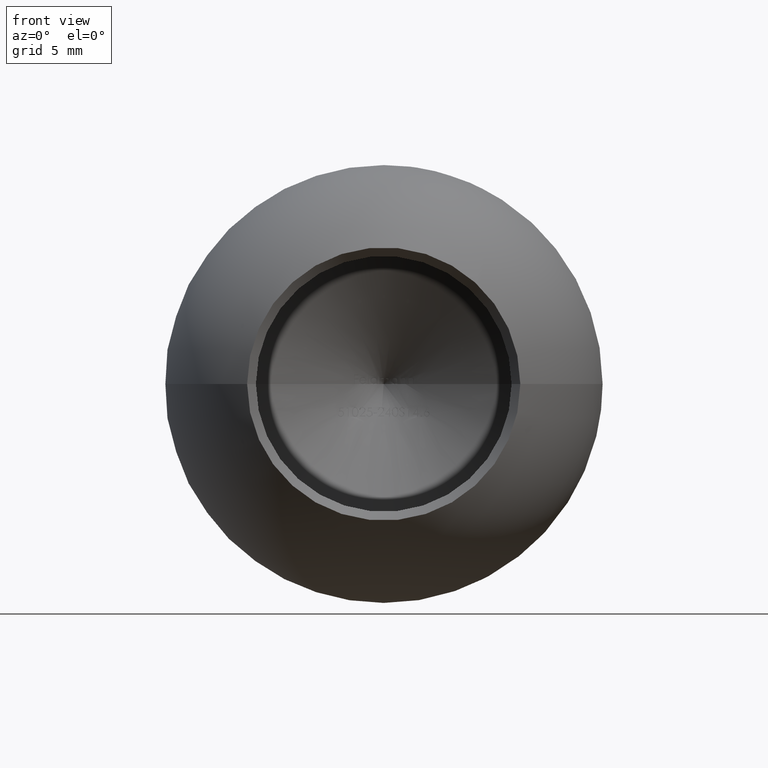
[diagram: clean part render]
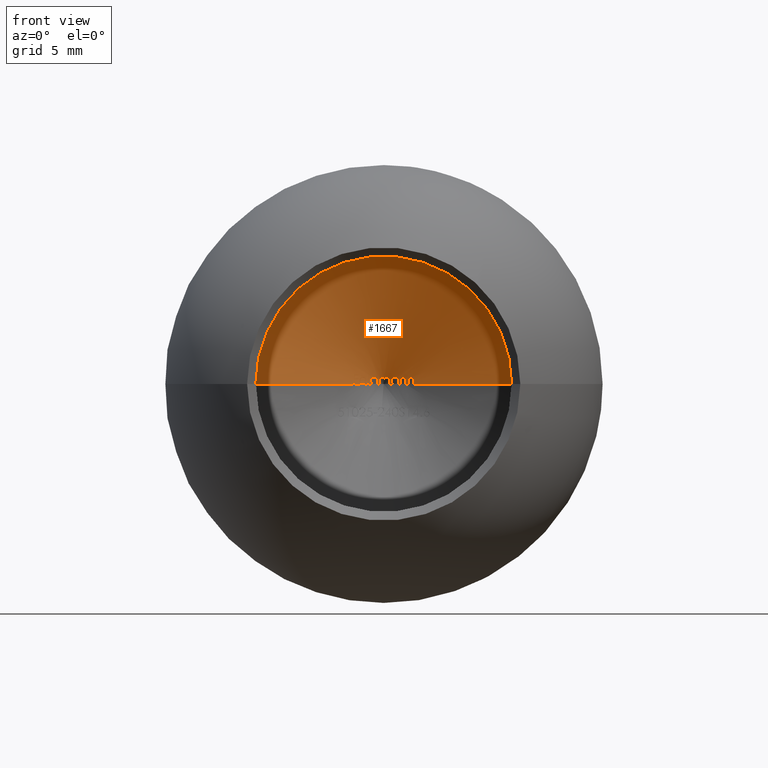
[diagram: same view with one face highlighted and labeled with its STEP entity id]
A machine part, front view. The second image highlights one B-rep face of the part: STEP entity #1667.
In plain terms, the highlighted conical surface has half-angle 59 deg.
Its self-contained STEP definition (entity closure, byte-faithful):
#3 = CARTESIAN_POINT ( 'NONE',  ( -1.359464049010948600, 8.300072753370894700, 0.08558561667971609200 ) ) ;
#4 = CARTESIAN_POINT ( 'NONE',  ( -1.455208333333331000, 8.230486014286812600, 0.2577991452991471000 ) ) ;
#19 = ORIENTED_EDGE ( 'NONE', *, *, #6080, .T. ) ;
#39 = CARTESIAN_POINT ( 'NONE',  ( -1.028440401976246300, 8.499100830340207600, 0.07479003011277882100 ) ) ;
#90 = CARTESIAN_POINT ( 'NONE',  ( 0.05628756009615242700, 8.935018984901988800, 0.3000943175747880500 ) ) ;
#99 = CARTESIAN_POINT ( 'NONE',  ( 0.8152527970150725800, 8.576327304647748000, 0.3866987179487196800 ) ) ;
#102 = CARTESIAN_POINT ( 'NONE',  ( -1.198787226228631400, 8.397759106165160900, 0.04070512820512996200 ) ) ;
#113 = CARTESIAN_POINT ( 'NONE',  ( 0.8310630341880341800, 8.619125212885034400, 1.763491390772190000E-015 ) ) ;
#120 = EDGE_CURVE ( 'NONE', #2337, #9594, #6677, .T. ) ;
#197 = CARTESIAN_POINT ( 'NONE',  ( -0.7632211538461541900, 8.645245099874275100, 0.1944093883547026200 ) ) ;
#205 = CARTESIAN_POINT ( 'NONE',  ( -1.455208333333331000, 8.224220684625157300, 0.3120726495726513500 ) ) ;
#250 = CARTESIAN_POINT ( 'NONE',  ( -0.1464960603632492800, 8.877203251643845100, 0.3738723624465829000 ) ) ;
#253 = CARTESIAN_POINT ( 'NONE',  ( -1.056425280448717100, 8.479487206482369600, 0.1221153846153863900 ) ) ;
#284 = CARTESIAN_POINT ( 'NONE',  ( -0.5601195245726498000, 8.707179324209210600, 0.3934829059829077500 ) ) ;
#324 = ORIENTED_EDGE ( 'NONE', *, *, #12617, .T. ) ;
#328 = CARTESIAN_POINT ( 'NONE',  ( -0.4036591880341884300, 8.811981739148977900, 0.3118606436965829500 ) ) ;
#339 = CARTESIAN_POINT ( 'NONE',  ( -0.7625839456207314000, 8.649117517478178000, 0.1708018247460580400 ) ) ;
#353 = CARTESIAN_POINT ( 'NONE',  ( 0.9870993589743595200, 8.495544385911525600, 0.3169487847222239900 ) ) ;
#375 = EDGE_CURVE ( 'NONE', #5452, #11974, #2359, .T. ) ;
#379 = B_SPLINE_CURVE_WITH_KNOTS ( 'NONE', 3,
 ( #6513, #3143, #13071, #5356, #14127, #11964, #13120, #3284, #10828, #9724 ),
 .UNSPECIFIED., .F., .F.,
 ( 4, 3, 3, 4 ),
 ( 0.0000000000000000000, 3.851311768730989100E-005, 5.820392503490865600E-005, 7.820939082748000800E-005 ),
 .UNSPECIFIED. ) ;
#402 = CARTESIAN_POINT ( 'NONE',  ( -1.713007478632476300, 8.072052014903466200, 0.3552465489846281000 ) ) ;
#440 = EDGE_CURVE ( 'NONE', #5796, #759, #7987, .T. ) ;
#448 = CARTESIAN_POINT ( 'NONE',  ( -0.8581997863247867700, 8.508355205683612300, 0.5427350427350443600 ) ) ;
#467 = VERTEX_POINT ( 'NONE', #6919 ) ;
#508 = CARTESIAN_POINT ( 'NONE',  ( -1.078411163571378000, 8.434947290810773900, 0.3621396847871327100 ) ) ;
#521 = ORIENTED_EDGE ( 'NONE', *, *, #13906, .T. ) ;
#555 = EDGE_CURVE ( 'NONE', #1214, #2063, #12335, .T. ) ;
#584 = CARTESIAN_POINT ( 'NONE',  ( -1.244739828179895800, 8.370038956932448900, 0.04667709270720637300 ) ) ;
#606 = CARTESIAN_POINT ( 'NONE',  ( -1.665518162393159900, 8.105816654442710600, 0.2577991452991471000 ) ) ;
#640 = VECTOR ( 'NONE', #4144, 1000.000000000000100 ) ;
#648 = B_SPLINE_CURVE_WITH_KNOTS ( 'NONE', 3,
 ( #5628, #7793, #12139, #7744 ),
 .UNSPECIFIED., .F., .F.,
 ( 4, 4 ),
 ( 0.0004557556277215127000, 0.0005315753064073845500 ),
 .UNSPECIFIED. ) ;
#654 = CARTESIAN_POINT ( 'NONE',  ( -0.4036591880341884300, 8.811981739148977900, 0.3118606436965829500 ) ) ;
#659 = CARTESIAN_POINT ( 'NONE',  ( 1.726575854700856100, 8.074282786210961400, 0.1974834735576940500 ) ) ;
#720 = CARTESIAN_POINT ( 'NONE',  ( 0.5052355336211176200, 8.747305128177675500, 0.3554560686072419900 ) ) ;
#731 = CARTESIAN_POINT ( 'NONE',  ( -1.325523987704848600, 8.318995754416924600, 0.1166909536807582300 ) ) ;
#740 = CARTESIAN_POINT ( 'NONE',  ( 1.387366452991454400, 8.284864396295665400, 1.763491390772190000E-015 ) ) ;
#756 = CARTESIAN_POINT ( 'NONE',  ( 1.603071530940852300, 8.126774772052211700, 0.3927497666173402300 ) ) ;
#759 = VERTEX_POINT ( 'NONE', #1402 ) ;
#792 = CARTESIAN_POINT ( 'NONE',  ( -1.665518162393159900, 8.077848336225860800, 0.4748931623931641500 ) ) ;
#842 = CARTESIAN_POINT ( 'NONE',  ( 1.235356144932155300, 8.346093499238392600, 0.3560914932666458000 ) ) ;
#851 = ORIENTED_EDGE ( 'NONE', *, *, #1169, .T. ) ;
#859 = EDGE_CURVE ( 'NONE', #14108, #1027, #7703, .T. ) ;
#873 = CARTESIAN_POINT ( 'NONE',  ( -1.356485598362125600, 8.283417525772977200, 0.3030847161020872600 ) ) ;
#882 = CARTESIAN_POINT ( 'NONE',  ( -0.2319295287319063100, 8.847655680797869200, 0.3866987179487196800 ) ) ;
#895 = EDGE_CURVE ( 'NONE', #5198, #12167, #10629, .T. ) ;
#910 = CARTESIAN_POINT ( 'NONE',  ( 0.9396100427350431200, 8.553903590135890400, 1.763491390772190000E-015 ) ) ;
#926 = CARTESIAN_POINT ( 'NONE',  ( 0.03691465003644359100, 8.911483008187643100, 0.3425989698512748600 ) ) ;
#987 = B_SPLINE_CURVE_WITH_KNOTS ( 'NONE', 3,
 ( #9441, #6223, #12735, #11581, #13888, #720, #2840, #9532, #2941, #2072 ),
 .UNSPECIFIED., .F., .F.,
 ( 4, 2, 2, 2, 4 ),
 ( 0.0000000000000000000, 8.887169550606136400E-005, 0.0001777433910121227300, 0.0002666150865181841000, 0.0003554867820242454500 ),
 .UNSPECIFIED. ) ;
#994 = CARTESIAN_POINT ( 'NONE',  ( 7.299999999999997200, 4.732195743157013200, 0.0000000000000000000 ) ) ;
#1027 = VERTEX_POINT ( 'NONE', #3352 ) ;
#1074 = LINE ( 'NONE', #1177, #9516 ) ;
#1075 = CARTESIAN_POINT ( 'NONE',  ( -1.455208333333331000, 8.198718867922151400, 0.4748931623931641500 ) ) ;
#1099 = CARTESIAN_POINT ( 'NONE',  ( 1.726575854700856100, 8.081046825204587900, 0.06570878130628132800 ) ) ;
#1169 = EDGE_CURVE ( 'NONE', #11357, #13966, #5753, .T. ) ;
#1177 = CARTESIAN_POINT ( 'NONE',  ( -8.639390585198639000E-016, 9.118478262058175700, 0.0000000000000000000 ) ) ;
#1192 = EDGE_CURVE ( 'NONE', #5211, #8941, #9186, .T. ) ;
#1214 = VERTEX_POINT ( 'NONE', #8212 ) ;
#1240 = CARTESIAN_POINT ( 'NONE',  ( -1.609161654515032500, 8.139270650196602100, 0.2577991452991471000 ) ) ;
#1261 = CARTESIAN_POINT ( 'NONE',  ( -1.322011995031311800, 8.324116184835789400, 0.03412153390933584500 ) ) ;
#1270 = CARTESIAN_POINT ( 'NONE',  ( 0.8310630341880341800, 8.619125212885034400, 0.1297088481553445600 ) ) ;
#1276 = VERTEX_POINT ( 'NONE', #1522 ) ;
#1284 = CARTESIAN_POINT ( 'NONE',  ( -0.6799325453821021300, 8.657236730340489600, 0.3571753214606114800 ) ) ;
#1348 = CARTESIAN_POINT ( 'NONE',  ( -0.7330956097721282900, 8.675117561873026500, 0.08527395509165736100 ) ) ;
#1402 = CARTESIAN_POINT ( 'NONE',  ( -1.713007478632476300, 8.041208400043437600, 0.5291666666672376600 ) ) ;
#1453 = EDGE_CURVE ( 'NONE', #5033, #9597, #6023, .T. ) ;
#1483 = CARTESIAN_POINT ( 'NONE',  ( 1.710145773918360300, 8.073343123503608600, 0.3183697774840329500 ) ) ;
#1488 = CARTESIAN_POINT ( 'NONE',  ( -0.6153909450648275000, 8.748714077849912800, -1.685227158638459800E-012 ) ) ;
#1517 = ORIENTED_EDGE ( 'NONE', *, *, #10794, .T. ) ;
#1522 = CARTESIAN_POINT ( 'NONE',  ( 1.387366452991454400, 8.253088440347196900, 0.3866987179489860300 ) ) ;
#1530 = CARTESIAN_POINT ( 'NONE',  ( 1.726504110921094100, 8.072662740833571600, 0.2218370612504843000 ) ) ;
#1550 = B_SPLINE_CURVE_WITH_KNOTS ( 'NONE', 3,
 ( #90, #12818, #6257, #6792, #9490, #3035 ),
 .UNSPECIFIED., .F., .F.,
 ( 4, 2, 4 ),
 ( 0.0000000000000000000, 9.791567227015362200E-005, 0.0001958313445403072400 ),
 .UNSPECIFIED. ) ;
#1569 = CARTESIAN_POINT ( 'NONE',  ( -1.455208333333331000, 8.224220684625157300, 0.3120726495726513500 ) ) ;
#1633 = CARTESIAN_POINT ( 'NONE',  ( -0.8581997863247866600, 8.536357604790556100, 0.4555429035165753400 ) ) ;
#1654 = CARTESIAN_POINT ( 'NONE',  ( -0.9056891025641029500, 8.484055350757159900, 0.5427350427350441400 ) ) ;
#1666 = CARTESIAN_POINT ( 'NONE',  ( -1.055599559354242400, 8.451912355216894200, 0.3415754201717940400 ) ) ;
#1667 = ADVANCED_FACE ( 'NONE', ( #4084 ), #5450, .F. ) ;
#1707 = CARTESIAN_POINT ( 'NONE',  ( 0.4273741730753242700, 8.847014036438777000, 0.1483415511614497900 ) ) ;
#1722 = CARTESIAN_POINT ( 'NONE',  ( -0.9974127522193292400, 8.503167694582925800, 0.2329511510321165800 ) ) ;
#1723 = CARTESIAN_POINT ( 'NONE',  ( -1.665518162393159900, 8.113667102104477300, 0.1723849973788114900 ) ) ;
#1747 = EDGE_CURVE ( 'NONE', #3228, #8222, #3367, .T. ) ;
#1749 = CARTESIAN_POINT ( 'NONE',  ( -1.387366452991452000, 8.276895611633614500, 0.1922893295940188200 ) ) ;
#1750 = CARTESIAN_POINT ( 'NONE',  ( -1.274064773147434200, 8.352056682000094800, 0.06132297238098317900 ) ) ;
#1761 = CARTESIAN_POINT ( 'NONE',  ( 1.278819444444444700, 8.350086019044814700, 0.06572117565366107600 ) ) ;
#1781 = CARTESIAN_POINT ( 'NONE',  ( 0.3290331196581181600, 8.884114087797565100, 0.2094618055555573000 ) ) ;
#1844 = CARTESIAN_POINT ( 'NONE',  ( -1.331204033479626000, 8.314649102277002200, 0.1326460330122393200 ) ) ;
#1853 = VERTEX_POINT ( 'NONE', #9704 ) ;
#1857 = CARTESIAN_POINT ( 'NONE',  ( -2.563521853194188900E-013, -990.8815217379418500, 0.0000000000000000000 ) ) ;
#1900 = B_SPLINE_CURVE_WITH_KNOTS ( 'NONE', 3,
 ( #10949, #12047, #4288, #13151 ),
 .UNSPECIFIED., .F., .F.,
 ( 4, 4 ),
 ( 0.0005639876574355699100, 0.0009495790971999895800 ),
 .UNSPECIFIED. ) ;
#1906 = DIRECTION ( 'NONE',  ( -2.554882462608990100E-016, -1.000000000000000000, -0.0000000000000000000 ) ) ;
#1909 = CARTESIAN_POINT ( 'NONE',  ( 1.270315914121940900, 8.335197159919918200, 0.2936901107530275300 ) ) ;
#1971 = CARTESIAN_POINT ( 'NONE',  ( -0.3720548649314338000, 8.723182397496604100, 0.5427350427350443600 ) ) ;
#1985 = ORIENTED_EDGE ( 'NONE', *, *, #8897, .T. ) ;
#2003 = CARTESIAN_POINT ( 'NONE',  ( 1.434855769230770400, 8.232533135246557200, 0.3402023843894180200 ) ) ;
#2030 = CARTESIAN_POINT ( 'NONE',  ( 0.9396100427350431200, 8.553903590135890400, 0.1294310334591638200 ) ) ;
#2048 = CARTESIAN_POINT ( 'NONE',  ( -0.006280716957641871600, 8.890178867903817000, 0.3801676474007146800 ) ) ;
#2063 = VERTEX_POINT ( 'NONE', #14203 ) ;
#2072 = CARTESIAN_POINT ( 'NONE',  ( 0.6271133814102563000, 8.673638460718954900, 0.3934829059829077500 ) ) ;
#2073 = VERTEX_POINT ( 'NONE', #994 ) ;
#2079 = CARTESIAN_POINT ( 'NONE',  ( -0.9056891025641029500, 8.574285347244996900, 0.1850713169210248800 ) ) ;
#2132 = ORIENTED_EDGE ( 'NONE', *, *, #375, .F. ) ;
#2144 = CARTESIAN_POINT ( 'NONE',  ( -0.08047929578035927000, 8.877593915752545000, 0.3929728620779930300 ) ) ;
#2147 = DIRECTION ( 'NONE',  ( -2.554882462608990100E-016, -1.000000000000000000, -0.0000000000000000000 ) ) ;
#2154 = CARTESIAN_POINT ( 'NONE',  ( -0.2476228632478646400, 8.969691435161689000, 1.763491390772190000E-015 ) ) ;
#2188 = CARTESIAN_POINT ( 'NONE',  ( -0.1275474555417493400, 8.876284458575016200, 0.3823658772373905200 ) ) ;
#2210 = VERTEX_POINT ( 'NONE', #13568 ) ;
#2223 = CARTESIAN_POINT ( 'NONE',  ( 1.726575854700856100, 8.074282786210961400, 0.1974834735576940500 ) ) ;
#2256 = CARTESIAN_POINT ( 'NONE',  ( -1.637342083603801700, 8.122547314021607800, 0.2577991452991471000 ) ) ;
#2258 = CARTESIAN_POINT ( 'NONE',  ( 1.726575854700856100, 8.078760579760658100, 0.1319040440355387400 ) ) ;
#2275 = CARTESIAN_POINT ( 'NONE',  ( -1.171343290367689000, 8.414228898772451600, 0.04122937674193973000 ) ) ;
#2301 = CARTESIAN_POINT ( 'NONE',  ( -1.580976159600417700, 8.155985441918526000, 0.2577991452991471000 ) ) ;
#2302 = CARTESIAN_POINT ( 'NONE',  ( -1.525415730075772900, 8.158615458834399100, 0.4748931623931641500 ) ) ;
#2337 = VERTEX_POINT ( 'NONE', #3688 ) ;
#2343 = CARTESIAN_POINT ( 'NONE',  ( -0.7624552855048835100, 8.641659084146459300, 0.2215941953324646900 ) ) ;
#2347 = CARTESIAN_POINT ( 'NONE',  ( 1.434855769230770400, 8.225568859115288200, 0.3866987179487196800 ) ) ;
#2351 = B_SPLINE_CURVE_WITH_KNOTS ( 'NONE', 3,
 ( #4149, #7420, #1971, #13978 ),
 .UNSPECIFIED., .F., .F.,
 ( 4, 4 ),
 ( 0.0006941170367570027800, 0.0007441209749478861200 ),
 .UNSPECIFIED. ) ;
#2359 = LINE ( 'NONE', #10923, #7892 ) ;
#2368 = ORIENTED_EDGE ( 'NONE', *, *, #555, .T. ) ;
#2371 = CARTESIAN_POINT ( 'NONE',  ( -1.455208333333331000, 8.226497283207709900, 0.2940031593693433500 ) ) ;
#2400 = CARTESIAN_POINT ( 'NONE',  ( -1.539065726241687600, 8.180839508405167500, 0.2577991452991471000 ) ) ;
#2480 = EDGE_CURVE ( 'NONE', #5796, #3579, #4939, .T. ) ;
#2491 = B_SPLINE_CURVE_WITH_KNOTS ( 'NONE', 3,
 ( #5234, #10889, #5416, #8552 ),
 .UNSPECIFIED., .F., .F.,
 ( 4, 4 ),
 ( 0.001061668204738802100, 0.001132097086300241100 ),
 .UNSPECIFIED. ) ;
#2498 = EDGE_CURVE ( 'NONE', #467, #3296, #4418, .T. ) ;
#2558 = ORIENTED_EDGE ( 'NONE', *, *, #440, .T. ) ;
#2564 = VERTEX_POINT ( 'NONE', #8011 ) ;
#2597 = B_SPLINE_CURVE_WITH_KNOTS ( 'NONE', 3,
 ( #1654, #4980, #4019, #12841 ),
 .UNSPECIFIED., .F., .F.,
 ( 4, 4 ),
 ( 0.001184049744158129000, 0.001237385229849882300 ),
 .UNSPECIFIED. ) ;
#2627 = CARTESIAN_POINT ( 'NONE',  ( 0.7835737179487178800, 8.605642078921198000, 0.3390752143978219600 ) ) ;
#2689 = CARTESIAN_POINT ( 'NONE',  ( -0.8581997863247867700, 8.508355205683612300, 0.5427350427350443600 ) ) ;
#2693 = VECTOR ( 'NONE', #9523, 999.9999999999998900 ) ;
#2708 = B_SPLINE_CURVE_WITH_KNOTS ( 'NONE', 3,
 ( #13022, #2079, #14118, #10688 ),
 .UNSPECIFIED., .F., .F.,
 ( 4, 4 ),
 ( 0.002179156374596971700, 0.002730695269506445400 ),
 .UNSPECIFIED. ) ;
#2732 = CARTESIAN_POINT ( 'NONE',  ( -0.9946420004786051800, 8.508064542034235300, 0.2081726088802171900 ) ) ;
#2744 = CARTESIAN_POINT ( 'NONE',  ( 0.3282098184729216900, 8.854631050640220400, 0.2946327035781674500 ) ) ;
#2748 = VERTEX_POINT ( 'NONE', #5654 ) ;
#2765 = CARTESIAN_POINT ( 'NONE',  ( -0.3561698717948721400, 8.728419140423364200, 0.5427350427350443600 ) ) ;
#2771 = CARTESIAN_POINT ( 'NONE',  ( -1.035966713408118700, 8.467451251156346000, 0.3173727964743607300 ) ) ;
#2791 = CARTESIAN_POINT ( 'NONE',  ( 0.1981194911858960000, 8.853771961710725300, 0.3934829059829077500 ) ) ;
#2805 = CARTESIAN_POINT ( 'NONE',  ( -1.336835441720501500, 8.310339669985157900, 0.1484644909602553000 ) ) ;
#2810 = CARTESIAN_POINT ( 'NONE',  ( -0.3561698717948721900, 8.879467970230683300, 0.1906236986030258300 ) ) ;
#2840 = CARTESIAN_POINT ( 'NONE',  ( 0.5269113906325519900, 8.731673443515116900, 0.3698808421072846100 ) ) ;
#2850 = CARTESIAN_POINT ( 'NONE',  ( -1.229109325351583200, 8.379490091195318500, 0.04361298208247930300 ) ) ;
#2894 = CARTESIAN_POINT ( 'NONE',  ( -1.455208333333331000, 8.188085094658573500, 0.5291666666666683400 ) ) ;
#2897 = CARTESIAN_POINT ( 'NONE',  ( -1.316873170836178700, 8.324884141183631000, 0.1019429019742940200 ) ) ;
#2941 = CARTESIAN_POINT ( 'NONE',  ( 0.6004099996070353400, 8.687474000888348900, 0.3927176343414279800 ) ) ;
#2966 = CARTESIAN_POINT ( 'NONE',  ( 1.277971374902708600, 8.336658667680545400, 0.2457841501025722100 ) ) ;
#2978 = CARTESIAN_POINT ( 'NONE',  ( 1.682707935524444500, 8.085047909077884400, 0.3564608434965994000 ) ) ;
#3014 = CARTESIAN_POINT ( 'NONE',  ( 1.134231436965812400, 8.397117686612642000, 0.3934829059829077500 ) ) ;
#3028 = CARTESIAN_POINT ( 'NONE',  ( 0.3290331196581181600, 8.906021664024327900, 0.1415675186101695000 ) ) ;
#3035 = CARTESIAN_POINT ( 'NONE',  ( 0.1981194911858960000, 8.853771961710725300, 0.3934829059829077500 ) ) ;
#3041 = CARTESIAN_POINT ( 'NONE',  ( -8.639390585198639000E-016, 9.118478262058175700, 0.0000000000000000000 ) ) ;
#3054 = ORIENTED_EDGE ( 'NONE', *, *, #11309, .T. ) ;
#3098 = CARTESIAN_POINT ( 'NONE',  ( -0.2476228632478646400, 8.969691435161689000, 0.06933420533432016500 ) ) ;
#3100 = CARTESIAN_POINT ( 'NONE',  ( 0.01864613191345376000, 8.900310031331757800, 0.3626138209287984600 ) ) ;
#3110 = CARTESIAN_POINT ( 'NONE',  ( 1.434855769230770400, 8.225568859115288200, 0.3866987179487196800 ) ) ;
#3143 = CARTESIAN_POINT ( 'NONE',  ( -0.1927462018438463600, 8.889156962921278500, 0.3296127375486475600 ) ) ;
#3148 = CARTESIAN_POINT ( 'NONE',  ( -0.05112407260770868200, 8.880557845610571400, 0.3929516778922429500 ) ) ;
#3201 = CARTESIAN_POINT ( 'NONE',  ( -0.1339977726762335000, 8.876494694234756000, 0.3798453727161585900 ) ) ;
#3228 = VERTEX_POINT ( 'NONE', #250 ) ;
#3244 = CARTESIAN_POINT ( 'NONE',  ( -0.03522397244553415700, 8.882911875327396300, 0.3907181555876256800 ) ) ;
#3249 = CARTESIAN_POINT ( 'NONE',  ( -0.1464960603632492800, 8.877203251643845100, 0.3738723624465829000 ) ) ;
#3269 = VERTEX_POINT ( 'NONE', #8479 ) ;
#3276 = ORIENTED_EDGE ( 'NONE', *, *, #11794, .T. ) ;
#3284 = CARTESIAN_POINT ( 'NONE',  ( -0.1574265256352362100, 8.878922756648311300, 0.3663451991440792600 ) ) ;
#3286 = CARTESIAN_POINT ( 'NONE',  ( -1.455208333333331000, 8.228590165845830000, 0.2758868656641008700 ) ) ;
#3296 = VERTEX_POINT ( 'NONE', #12917 ) ;
#3307 = EDGE_CURVE ( 'NONE', #13966, #12221, #10725, .T. ) ;
#3333 = CARTESIAN_POINT ( 'NONE',  ( -1.455208333333331000, 8.191795693165142100, 0.5110961522107422300 ) ) ;
#3352 = CARTESIAN_POINT ( 'NONE',  ( 0.9396100427350431200, 8.553903590135890400, 1.763491390772190000E-015 ) ) ;
#3355 = CARTESIAN_POINT ( 'NONE',  ( 0.4240117521367520700, 8.838203365231075600, 0.1944093883547026200 ) ) ;
#3360 = CARTESIAN_POINT ( 'NONE',  ( -1.177564833288101700, 8.402416925628205700, 0.1831730769230786600 ) ) ;
#3367 = B_SPLINE_CURVE_WITH_KNOTS ( 'NONE', 3,
 ( #3249, #8839, #3201, #2188, #11977, #4465, #13226, #7629, #2144, #10925 ),
 .UNSPECIFIED., .F., .F.,
 ( 4, 3, 3, 4 ),
 ( 0.0000000000000000000, 2.078541793869840500E-005, 4.165160414437693900E-005, 8.320017834670821400E-005 ),
 .UNSPECIFIED. ) ;
#3397 = B_SPLINE_CURVE_WITH_KNOTS ( 'NONE', 3,
 ( #4549, #3333, #6563, #5493 ),
 .UNSPECIFIED., .F., .F.,
 ( 4, 4 ),
 ( 0.001519163580579363300, 0.001573844538683942100 ),
 .UNSPECIFIED. ) ;
#3403 = CARTESIAN_POINT ( 'NONE',  ( -0.5847422711532431800, 8.695316870803740300, 0.3927772616629349700 ) ) ;
#3407 = CARTESIAN_POINT ( 'NONE',  ( -1.455208333333331000, 8.230486014286812600, 0.2577991452991471000 ) ) ;
#3411 = EDGE_CURVE ( 'NONE', #12014, #2073, #6653, .T. ) ;
#3454 = VERTEX_POINT ( 'NONE', #4460 ) ;
#3481 = CARTESIAN_POINT ( 'NONE',  ( -1.386712833582673300, 8.279164936220727400, 0.1694951814832652800 ) ) ;
#3551 = CARTESIAN_POINT ( 'NONE',  ( -0.5284715406823509200, 8.723061870500465900, 0.3925497902794605200 ) ) ;
#3574 = ORIENTED_EDGE ( 'NONE', *, *, #14240, .T. ) ;
#3579 = VERTEX_POINT ( 'NONE', #8047 ) ;
#3622 = ORIENTED_EDGE ( 'NONE', *, *, #5163, .T. ) ;
#3645 = EDGE_CURVE ( 'NONE', #8240, #2337, #12384, .T. ) ;
#3688 = CARTESIAN_POINT ( 'NONE',  ( 1.581987847222223500, 8.138962227577746200, 0.3934829059829077500 ) ) ;
#3691 = ORIENTED_EDGE ( 'NONE', *, *, #13355, .T. ) ;
#3718 = ORIENTED_EDGE ( 'NONE', *, *, #7283, .T. ) ;
#3732 = CARTESIAN_POINT ( 'NONE',  ( 1.278819444444444700, 8.340977879594733600, 0.1974834735576940500 ) ) ;
#3752 = B_SPLINE_CURVE_WITH_KNOTS ( 'NONE', 3,
 ( #11000, #8860, #9955, #3360, #4488, #4584, #5433 ),
 .UNSPECIFIED., .F., .F.,
 ( 4, 3, 4 ),
 ( 0.0004579323379490926300, 0.0006714259989998297100, 0.0008602593150187094100 ),
 .UNSPECIFIED. ) ;
#3759 = CARTESIAN_POINT ( 'NONE',  ( 1.453571182216306700, 8.221530222721821000, 0.3403741379040730000 ) ) ;
#3885 = CARTESIAN_POINT ( 'NONE',  ( -8.639390585198639000E-016, 9.118478262058175700, 0.0000000000000000000 ) ) ;
#3905 = ORIENTED_EDGE ( 'NONE', *, *, #7485, .T. ) ;
#3908 = CARTESIAN_POINT ( 'NONE',  ( -1.383672564581589300, 8.274854663126522100, 0.2392944843563458200 ) ) ;
#3909 = CARTESIAN_POINT ( 'NONE',  ( -1.208933315630880800, 8.391661367280779200, 0.04094370510102095900 ) ) ;
#3923 = CARTESIAN_POINT ( 'NONE',  ( 1.134231436965812400, 8.397117686612642000, 0.3934829059829077500 ) ) ;
#3932 = B_SPLINE_CURVE_WITH_KNOTS ( 'NONE', 3,
 ( #9690, #5453, #10787, #13125, #9831, #6518 ),
 .UNSPECIFIED., .F., .F.,
 ( 4, 2, 4 ),
 ( 0.0000000000000000000, 9.582566416305976600E-005, 0.0001916513283261195300 ),
 .UNSPECIFIED. ) ;
#3933 = CARTESIAN_POINT ( 'NONE',  ( -0.9938835470085459800, 8.511235285411313400, 0.1831730769230786600 ) ) ;
#3934 = CARTESIAN_POINT ( 'NONE',  ( -0.4036591880341884300, 8.783145551076597000, 0.3903580575058536200 ) ) ;
#4019 = CARTESIAN_POINT ( 'NONE',  ( -0.8740521052432762600, 8.500304920834862400, 0.5427350427350443600 ) ) ;
#4035 = B_SPLINE_CURVE_WITH_KNOTS ( 'NONE', 3,
 ( #13781, #9273, #10482, #6015 ),
 .UNSPECIFIED., .F., .F.,
 ( 4, 4 ),
 ( 2.589674448281594500E-007, 5.484452315193654400E-005 ),
 .UNSPECIFIED. ) ;
#4060 = DIRECTION ( 'NONE',  ( 0.8571673007021136700, -0.5150380749100518200, 0.0000000000000000000 ) ) ;
#4084 = FACE_OUTER_BOUND ( 'NONE', #8065, .T. ) ;
#4135 = CARTESIAN_POINT ( 'NONE',  ( -1.198787226228631400, 8.397759106165160900, 0.04070512820512996200 ) ) ;
#4139 = CARTESIAN_POINT ( 'NONE',  ( -0.4036591880341884300, 8.811981739148977900, 0.3118606436965829500 ) ) ;
#4144 = DIRECTION ( 'NONE',  ( 0.8571673007021136700, -0.5150380749100518200, 0.0000000000000000000 ) ) ;
#4149 = CARTESIAN_POINT ( 'NONE',  ( -0.4036591880341884300, 8.712062754421909400, 0.5427350427350443600 ) ) ;
#4197 = VERTEX_POINT ( 'NONE', #14046 ) ;
#4212 = CARTESIAN_POINT ( 'NONE',  ( -0.2476228632478646400, 8.951255692376976800, 0.1364620605427651300 ) ) ;
#4241 = EDGE_CURVE ( 'NONE', #3454, #11357, #3932, .T. ) ;
#4257 = VERTEX_POINT ( 'NONE', #1075 ) ;
#4279 = VERTEX_POINT ( 'NONE', #8784 ) ;
#4288 = CARTESIAN_POINT ( 'NONE',  ( 1.387366452991454400, 8.273618597049802400, 0.2594410872456924300 ) ) ;
#4305 = ORIENTED_EDGE ( 'NONE', *, *, #8199, .T. ) ;
#4323 = CARTESIAN_POINT ( 'NONE',  ( -1.665518162393159900, 8.094311265869340100, 0.3663558765691414800 ) ) ;
#4384 = B_SPLINE_CURVE_WITH_KNOTS ( 'NONE', 3,
 ( #792, #10890, #4323, #12954 ),
 .UNSPECIFIED., .F., .F.,
 ( 4, 4 ),
 ( 0.001461738839772241300, 0.001624290143534646000 ),
 .UNSPECIFIED. ) ;
#4418 = B_SPLINE_CURVE_WITH_KNOTS ( 'NONE', 3,
 ( #8327, #9430, #10579, #12775, #4912, #5051 ),
 .UNSPECIFIED., .F., .F.,
 ( 4, 2, 4 ),
 ( 0.0000000000000000000, 9.447378481608916600E-005, 0.0001889475696321783300 ),
 .UNSPECIFIED. ) ;
#4461 = ORIENTED_EDGE ( 'NONE', *, *, #10833, .T. ) ;
#4460 = CARTESIAN_POINT ( 'NONE',  ( 0.6271133814102563000, 8.673638460718954900, 0.3934829059829077500 ) ) ;
#4465 = CARTESIAN_POINT ( 'NONE',  ( -0.1144086390322948500, 8.876066107988354000, 0.3869417831195544100 ) ) ;
#4469 = B_SPLINE_CURVE_WITH_KNOTS ( 'NONE', 3,
 ( #12210, #2371, #3286, #4 ),
 .UNSPECIFIED., .F., .F.,
 ( 4, 4 ),
 ( 0.001193676856357933200, 0.001247584810943231300 ),
 .UNSPECIFIED. ) ;
#4478 = ORIENTED_EDGE ( 'NONE', *, *, #10054, .F. ) ;
#4488 = CARTESIAN_POINT ( 'NONE',  ( -1.231689179570526700, 8.370282188734973900, 0.1831730769230786600 ) ) ;
#4548 = ORIENTED_EDGE ( 'NONE', *, *, #6932, .T. ) ;
#4549 = CARTESIAN_POINT ( 'NONE',  ( -1.455208333333331000, 8.188085094658573500, 0.5291666666666683400 ) ) ;
#4584 = CARTESIAN_POINT ( 'NONE',  ( -1.285790881474471000, 8.338109298931193800, 0.1831730769230786600 ) ) ;
#4585 = CARTESIAN_POINT ( 'NONE',  ( -1.087255131263005700, 8.465187814702611400, 0.01783801191538598000 ) ) ;
#4625 = EDGE_CURVE ( 'NONE', #10468, #2748, #12206, .T. ) ;
#4661 = CARTESIAN_POINT ( 'NONE',  ( -0.7632211538461541900, 8.645245099874275100, 0.1944093883547026200 ) ) ;
#4692 = CARTESIAN_POINT ( 'NONE',  ( -1.713007478632476300, 8.089199528048233400, 0.1764256463782384000 ) ) ;
#4776 = CARTESIAN_POINT ( 'NONE',  ( 1.525397585370736900, 8.172848409553996200, 0.3873334647179039700 ) ) ;
#4847 = CARTESIAN_POINT ( 'NONE',  ( -1.132021955750468500, 8.399484867527935000, 0.3878204280992365600 ) ) ;
#4895 = CARTESIAN_POINT ( 'NONE',  ( -1.161648106492357800, 8.381701337234652300, 0.3927113657888057800 ) ) ;
#4912 = CARTESIAN_POINT ( 'NONE',  ( -1.219391340500214600, 8.348758612803264300, 0.3926934351310479300 ) ) ;
#4926 = VECTOR ( 'NONE', #6820, 1000.000000000000100 ) ;
#4929 = ORIENTED_EDGE ( 'NONE', *, *, #10536, .T. ) ;
#4939 = LINE ( 'NONE', #3885, #2693 ) ;
#4980 = CARTESIAN_POINT ( 'NONE',  ( -0.8898809533108319500, 8.492202933753313600, 0.5427350427350443600 ) ) ;
#4985 = CARTESIAN_POINT ( 'NONE',  ( 0.4546817830303142600, 8.840837765199008700, 0.08441678584325576500 ) ) ;
#5033 = VERTEX_POINT ( 'NONE', #448 ) ;
#5037 = CARTESIAN_POINT ( 'NONE',  ( -1.627235378756072900, 8.090449559818223300, 0.5291666666666683400 ) ) ;
#5045 = CARTESIAN_POINT ( 'NONE',  ( -1.035966713408118700, 8.467451251156346000, 0.3173727964743607300 ) ) ;
#5051 = CARTESIAN_POINT ( 'NONE',  ( -1.191685029380340900, 8.364418052968513700, 0.3934829059829077500 ) ) ;
#5093 = CARTESIAN_POINT ( 'NONE',  ( -1.135927483978443900, 8.435944170870655500, -8.257064710096157100E-013 ) ) ;
#5094 = CARTESIAN_POINT ( 'NONE',  ( 0.9396100427350431200, 8.507960427342144500, 0.3866987179487197400 ) ) ;
#5110 = VERTEX_POINT ( 'NONE', #2894 ) ;
#5163 = EDGE_CURVE ( 'NONE', #13907, #11760, #10799, .T. ) ;
#5198 = VERTEX_POINT ( 'NONE', #8673 ) ;
#5211 = VERTEX_POINT ( 'NONE', #10690 ) ;
#5234 = CARTESIAN_POINT ( 'NONE',  ( 0.9870993589743595200, 8.481480688559065200, 0.3866987179487196800 ) ) ;
#5265 = CARTESIAN_POINT ( 'NONE',  ( -1.665518162393159900, 8.117733988000985300, 1.763491390772190000E-015 ) ) ;
#5266 = EDGE_CURVE ( 'NONE', #6403, #5578, #6140, .T. ) ;
#5269 = CARTESIAN_POINT ( 'NONE',  ( 0.8310630341880341800, 8.619125212885034400, 1.763491390772190000E-015 ) ) ;
#5280 = CARTESIAN_POINT ( 'NONE',  ( 0.7835737179487178800, 8.611007007587177900, 0.3151467347756427600 ) ) ;
#5286 = CARTESIAN_POINT ( 'NONE',  ( 0.7835737179487178800, 8.593447205561826500, 0.3866987179487196800 ) ) ;
#5303 = ORIENTED_EDGE ( 'NONE', *, *, #12128, .T. ) ;
#5315 = CARTESIAN_POINT ( 'NONE',  ( -0.2160807069223064600, 8.852448157385355300, 0.3866987179487196800 ) ) ;
#5356 = CARTESIAN_POINT ( 'NONE',  ( -0.1765711993143910000, 8.883582491027469900, 0.3487844694389354800 ) ) ;
#5363 = CARTESIAN_POINT ( 'NONE',  ( -0.02079407405069787200, 8.886534894325990300, 0.3854581128389894500 ) ) ;
#5396 = CARTESIAN_POINT ( 'NONE',  ( 0.9396100427350431200, 8.507960427342144500, 0.3866987179487197400 ) ) ;
#5406 = CARTESIAN_POINT ( 'NONE',  ( 0.04845395435313291200, 8.923384360342378600, 0.3211229367574683400 ) ) ;
#5416 = CARTESIAN_POINT ( 'NONE',  ( 0.9870993589743595200, 8.491269003826953800, 0.3402232820233047100 ) ) ;
#5433 = CARTESIAN_POINT ( 'NONE',  ( -1.339877136752135800, 8.305910492031925300, 0.1831730769230786600 ) ) ;
#5450 = CONICAL_SURFACE ( 'NONE', #7031, 1664.279482350529000, 1.029744258676657400 ) ;
#5452 = VERTEX_POINT ( 'NONE', #11377 ) ;
#5453 = CARTESIAN_POINT ( 'NONE',  ( 0.6560317198127474400, 8.659173376068398700, 0.3926894086346133200 ) ) ;
#5493 = CARTESIAN_POINT ( 'NONE',  ( -1.455208333333331000, 8.198718867922151400, 0.4748931623931641500 ) ) ;
#5569 = CARTESIAN_POINT ( 'NONE',  ( -0.7357995296536961000, 8.641592177821998200, 0.2987488803738627100 ) ) ;
#5572 = ORIENTED_EDGE ( 'NONE', *, *, #3307, .T. ) ;
#5578 = VERTEX_POINT ( 'NONE', #10797 ) ;
#5589 = EDGE_CURVE ( 'NONE', #3269, #5211, #4384, .T. ) ;
#5623 = CARTESIAN_POINT ( 'NONE',  ( -1.497144135581069700, 8.205674776206510800, 0.2577991452991471000 ) ) ;
#5628 = CARTESIAN_POINT ( 'NONE',  ( -0.2001335470085484100, 8.856852387791574800, 0.3866987179487196800 ) ) ;
#5651 = ORIENTED_EDGE ( 'NONE', *, *, #1453, .T. ) ;
#5654 = CARTESIAN_POINT ( 'NONE',  ( -0.5601195245726498000, 8.707179324209210600, 0.3934829059829077500 ) ) ;
#5684 = ORIENTED_EDGE ( 'NONE', *, *, #13840, .T. ) ;
#5742 = VERTEX_POINT ( 'NONE', #7778 ) ;
#5753 = B_SPLINE_CURVE_WITH_KNOTS ( 'NONE', 3,
 ( #11313, #2627, #11414, #12464 ),
 .UNSPECIFIED., .F., .F.,
 ( 4, 4 ),
 ( 0.0004316025189781505000, 0.0005045005188948159600 ),
 .UNSPECIFIED. ) ;
#5786 = B_SPLINE_CURVE_WITH_KNOTS ( 'NONE', 3,
 ( #606, #1723, #6068, #7038 ),
 .UNSPECIFIED., .F., .F.,
 ( 4, 4 ),
 ( 0.001065161281734964200, 0.001320269043365338200 ),
 .UNSPECIFIED. ) ;
#5796 = VERTEX_POINT ( 'NONE', #13470 ) ;
#5814 = CARTESIAN_POINT ( 'NONE',  ( -0.4974798504800686500, 8.739914893893150300, 0.3866342090348241500 ) ) ;
#5884 = ORIENTED_EDGE ( 'NONE', *, *, #7859, .T. ) ;
#5891 = CARTESIAN_POINT ( 'NONE',  ( -1.665518162393159900, 8.105816654442710600, 0.2577991452991471000 ) ) ;
#5902 = CARTESIAN_POINT ( 'NONE',  ( -0.4225331317246461300, 8.794095706280948800, 0.3361200866071122300 ) ) ;
#5918 = CARTESIAN_POINT ( 'NONE',  ( 0.8310630341880344000, 8.567714307129472600, 0.3866987179487196800 ) ) ;
#5975 = CARTESIAN_POINT ( 'NONE',  ( 0.2962337679600644500, 8.842608633142749100, 0.3513793890084019300 ) ) ;
#5995 = CARTESIAN_POINT ( 'NONE',  ( -0.3561698717948721400, 8.771431762270776000, 0.4571119305965582500 ) ) ;
#6015 = CARTESIAN_POINT ( 'NONE',  ( -1.014236111111110000, 8.506111067186449000, 0.09996077056624105800 ) ) ;
#6023 = B_SPLINE_CURVE_WITH_KNOTS ( 'NONE', 3,
 ( #2689, #1633, #8134, #8083, #10388, #11480 ),
 .UNSPECIFIED., .F., .F.,
 ( 4, 2, 4 ),
 ( 0.003324101237090378000, 0.003599878807832542100, 0.003875656378574706600 ),
 .UNSPECIFIED. ) ;
#6058 = B_SPLINE_CURVE_WITH_KNOTS ( 'NONE', 3,
 ( #2765, #5995, #9405, #2810, #12605, #10464 ),
 .UNSPECIFIED., .F., .F.,
 ( 4, 2, 4 ),
 ( 0.001083190659185807900, 0.001370475864938632600, 0.001657761070691457200 ),
 .UNSPECIFIED. ) ;
#6068 = CARTESIAN_POINT ( 'NONE',  ( -1.665518162393159900, 8.117733988000990700, 0.08580220267704136200 ) ) ;
#6080 = EDGE_CURVE ( 'NONE', #9825, #7570, #7207, .T. ) ;
#6132 = CARTESIAN_POINT ( 'NONE',  ( -0.9056891025641029500, 8.484055350757159900, 0.5427350427350441400 ) ) ;
#6140 = B_SPLINE_CURVE_WITH_KNOTS ( 'NONE', 3,
 ( #8284, #9343, #13835, #11624, #5975, #2744, #8381, #1781 ),
 .UNSPECIFIED., .F., .F.,
 ( 4, 2, 2, 4 ),
 ( 0.0000000000000000000, 6.573407523529308400E-005, 0.0001314681504705861700, 0.0002629363009411731500 ),
 .UNSPECIFIED. ) ;
#6144 = CARTESIAN_POINT ( 'NONE',  ( 1.076997598257189300, 8.430820576822352300, 0.3871275609211913800 ) ) ;
#6211 = ORIENTED_EDGE ( 'NONE', *, *, #13334, .T. ) ;
#6223 = CARTESIAN_POINT ( 'NONE',  ( 0.4248278770097070900, 8.830503078899834400, 0.2233780712802912700 ) ) ;
#6240 = CARTESIAN_POINT ( 'NONE',  ( -0.2476228632478646400, 8.873247266658083300, 0.3260739292658997900 ) ) ;
#6247 = CARTESIAN_POINT ( 'NONE',  ( -1.455208333333331000, 8.188085094658573500, 0.5291666666666683400 ) ) ;
#6257 = CARTESIAN_POINT ( 'NONE',  ( 0.08779943702450229700, 8.902758501370543700, 0.3485925733419340000 ) ) ;
#6286 = VERTEX_POINT ( 'NONE', #10166 ) ;
#6321 = ORIENTED_EDGE ( 'NONE', *, *, #8223, .T. ) ;
#6323 = ORIENTED_EDGE ( 'NONE', *, *, #10960, .T. ) ;
#6324 = CARTESIAN_POINT ( 'NONE',  ( 0.9554523860244417100, 8.499157721360571600, 0.3866987179487196800 ) ) ;
#6379 = B_SPLINE_CURVE_WITH_KNOTS ( 'NONE', 3,
 ( #10564, #5037, #13913, #6247 ),
 .UNSPECIFIED., .F., .F.,
 ( 4, 4 ),
 ( 0.001681514268559850600, 0.001978209489619649800 ),
 .UNSPECIFIED. ) ;
#6403 = VERTEX_POINT ( 'NONE', #2791 ) ;
#6410 = B_SPLINE_CURVE_WITH_KNOTS ( 'NONE', 3,
 ( #10060, #39, #8908, #4585, #11143, #6650 ),
 .UNSPECIFIED., .F., .F.,
 ( 4, 2, 4 ),
 ( 0.0000000000000000000, 8.830037477417946900E-005, 0.0001766007495483589400 ),
 .UNSPECIFIED. ) ;
#6429 = CARTESIAN_POINT ( 'NONE',  ( -1.339877136752135800, 8.305910492031925300, 0.1831730769230786600 ) ) ;
#6465 = CARTESIAN_POINT ( 'NONE',  ( 0.05628756009615242700, 8.935018984901988800, 0.3000943175747880500 ) ) ;
#6481 = ORIENTED_EDGE ( 'NONE', *, *, #10494, .T. ) ;
#6485 = AXIS2_PLACEMENT_3D ( 'NONE', #14193, #2147, #13131 ) ;
#6513 = CARTESIAN_POINT ( 'NONE',  ( -0.2001335470085484100, 8.891953712113227900, 0.3194928552350445000 ) ) ;
#6518 = CARTESIAN_POINT ( 'NONE',  ( 0.7835737179487178800, 8.611007007587177900, 0.3151467347756427600 ) ) ;
#6543 = CARTESIAN_POINT ( 'NONE',  ( -0.2476228632478646400, 8.842570693861654600, 0.3866987179487196300 ) ) ;
#6551 = VERTEX_POINT ( 'NONE', #8813 ) ;
#6563 = CARTESIAN_POINT ( 'NONE',  ( -1.455208333333331000, 8.195345027168246000, 0.4929921971435599600 ) ) ;
#6594 = CARTESIAN_POINT ( 'NONE',  ( -1.595508670522801200, 8.118301963563284900, 0.4748931623931641500 ) ) ;
#6595 = B_SPLINE_CURVE_WITH_KNOTS ( 'NONE', 3,
 ( #3732, #7122, #1761, #11416 ),
 .UNSPECIFIED., .F., .F.,
 ( 4, 4 ),
 ( 0.0008209945578519190800, 0.001016414369023487300 ),
 .UNSPECIFIED. ) ;
#6625 = DIRECTION ( 'NONE',  ( -0.8571673007021138900, -0.5150380749100514900, 1.049727191138620500E-016 ) ) ;
#6644 = EDGE_CURVE ( 'NONE', #13627, #11491, #3752, .T. ) ;
#6650 = CARTESIAN_POINT ( 'NONE',  ( -1.135927483978443900, 8.435944170870655500, -8.257064710096157100E-013 ) ) ;
#6653 = LINE ( 'NONE', #13414, #4926 ) ;
#6677 = B_SPLINE_CURVE_WITH_KNOTS ( 'NONE', 3,
 ( #8374, #756, #8466, #12474, #2978, #1483, #8127, #9176, #1530, #659 ),
 .UNSPECIFIED., .F., .F.,
 ( 4, 2, 2, 2, 4 ),
 ( 0.0000000000000000000, 7.238617317193051200E-005, 0.0001447723463438610200, 0.0002171585195157915300, 0.0002895446926877220500 ),
 .UNSPECIFIED. ) ;
#6683 = VECTOR ( 'NONE', #4060, 1000.000000000000100 ) ;
#6699 = ORIENTED_EDGE ( 'NONE', *, *, #120, .T. ) ;
#6711 = CARTESIAN_POINT ( 'NONE',  ( 0.7994228958294348200, 8.584907378248503900, 0.3866987179487196800 ) ) ;
#6737 = ORIENTED_EDGE ( 'NONE', *, *, #2498, .T. ) ;
#6792 = CARTESIAN_POINT ( 'NONE',  ( 0.1363464533763741600, 8.874616893734572200, 0.3826987125908180600 ) ) ;
#6803 = CARTESIAN_POINT ( 'NONE',  ( -0.6914595132607940200, 8.702901983261140700, 0.03466187343245574800 ) ) ;
#6820 = DIRECTION ( 'NONE',  ( 0.8571673007021136700, -0.5150380749100518200, 0.0000000000000000000 ) ) ;
#6862 = CARTESIAN_POINT ( 'NONE',  ( -1.073752915113489500, 8.470920485356417700, 0.09637610866955377600 ) ) ;
#6866 = B_SPLINE_CURVE_WITH_KNOTS ( 'NONE', 3,
 ( #9684, #3098, #4212, #12988, #6240, #7342 ),
 .UNSPECIFIED., .F., .F.,
 ( 4, 2, 4 ),
 ( 0.0008747357937614107300, 0.001079480158623735100, 0.001284224523486059200 ),
 .UNSPECIFIED. ) ;
#6898 = CARTESIAN_POINT ( 'NONE',  ( -8.639390585198639000E-016, 9.118478262058175700, 0.0000000000000000000 ) ) ;
#6913 = EDGE_CURVE ( 'NONE', #8941, #10071, #4469, .T. ) ;
#6919 = CARTESIAN_POINT ( 'NONE',  ( -1.342845219017093000, 8.288826632437229900, 0.3214009081196598800 ) ) ;
#6932 = EDGE_CURVE ( 'NONE', #5110, #4257, #3397, .T. ) ;
#6951 = CARTESIAN_POINT ( 'NONE',  ( -0.6548595648389481400, 8.724998938552941400, 0.01033408935828345300 ) ) ;
#6981 = CARTESIAN_POINT ( 'NONE',  ( -1.525361414162986500, 8.183005545118270200, 0.3120726495726513500 ) ) ;
#6988 = CARTESIAN_POINT ( 'NONE',  ( -1.387366452991452000, 8.276895611633614500, 0.1922893295940188200 ) ) ;
#7010 = CARTESIAN_POINT ( 'NONE',  ( -1.713007478632476300, 8.089199528048235200, 1.763491390772190000E-015 ) ) ;
#7021 = CARTESIAN_POINT ( 'NONE',  ( 0.5718419609183882400, 8.774880947448712800, -1.718740546603413800E-012 ) ) ;
#7031 = AXIS2_PLACEMENT_3D ( 'NONE', #1857, #1906, #8599 ) ;
#7038 = CARTESIAN_POINT ( 'NONE',  ( -1.665518162393159900, 8.117733988000985300, 1.763491390772190000E-015 ) ) ;
#7122 = CARTESIAN_POINT ( 'NONE',  ( 1.278819444444444700, 8.346978709468460900, 0.1320449206917676300 ) ) ;
#7126 = B_SPLINE_CURVE_WITH_KNOTS ( 'NONE', 3,
 ( #1488, #6951, #6803, #1348, #10206, #11381, #339, #197 ),
 .UNSPECIFIED., .F., .F.,
 ( 4, 2, 2, 4 ),
 ( 6.300518127704640400E-005, 0.0002043452114807026200, 0.0002750152265825307100, 0.0003456852416843588100 ),
 .UNSPECIFIED. ) ;
#7155 = CARTESIAN_POINT ( 'NONE',  ( -1.219117226891501100, 8.385531909884797100, 0.04165419064811810800 ) ) ;
#7165 = CARTESIAN_POINT ( 'NONE',  ( 0.9870993589743595200, 8.495544385911525600, 0.3169487847222239900 ) ) ;
#7196 = ORIENTED_EDGE ( 'NONE', *, *, #9268, .T. ) ;
#7207 = B_SPLINE_CURVE_WITH_KNOTS ( 'NONE', 3,
 ( #9918, #10072, #1261, #3, #13367, #8966, #3481, #11158 ),
 .UNSPECIFIED., .F., .F.,
 ( 4, 2, 2, 4 ),
 ( 6.608354809621744400E-005, 0.0002001519546333936900, 0.0002671861579019818400, 0.0003342203611705699400 ),
 .UNSPECIFIED. ) ;
#7218 = B_SPLINE_CURVE_WITH_KNOTS ( 'NONE', 3,
 ( #12166, #13276, #1270, #113 ),
 .UNSPECIFIED., .F., .F.,
 ( 4, 4 ),
 ( 0.0005210138540011967700, 0.0009096797771996785700 ),
 .UNSPECIFIED. ) ;
#7219 = VECTOR ( 'NONE', #13999, 999.9999999999998900 ) ;
#7283 = EDGE_CURVE ( 'NONE', #12167, #1276, #1900, .T. ) ;
#7296 = CARTESIAN_POINT ( 'NONE',  ( 0.5334101365654830800, 8.797973117205868800, 0.01006262467079112500 ) ) ;
#7342 = CARTESIAN_POINT ( 'NONE',  ( -0.2476228632478646400, 8.842570693861654600, 0.3866987179487196300 ) ) ;
#7363 = EDGE_CURVE ( 'NONE', #2210, #10413, #648, .T. ) ;
#7391 = ORIENTED_EDGE ( 'NONE', *, *, #11291, .T. ) ;
#7400 = CARTESIAN_POINT ( 'NONE',  ( 0.8310630341880344000, 8.567714307129472600, 0.3866987179487196800 ) ) ;
#7407 = CARTESIAN_POINT ( 'NONE',  ( 1.434855769230770400, 8.235546833649854300, 0.3169487847222239900 ) ) ;
#7420 = CARTESIAN_POINT ( 'NONE',  ( -0.3879052361907734900, 8.717711884390746800, 0.5427350427350443600 ) ) ;
#7428 = CARTESIAN_POINT ( 'NONE',  ( 0.9870993589743595200, 8.481480688559065200, 0.3866987179487196800 ) ) ;
#7450 = CARTESIAN_POINT ( 'NONE',  ( 1.155344782319205800, 8.385276834621995700, 0.3927487351983350900 ) ) ;
#7472 = B_SPLINE_CURVE_WITH_KNOTS ( 'NONE', 3,
 ( #11948, #2302, #6594, #12135 ),
 .UNSPECIFIED., .F., .F.,
 ( 4, 4 ),
 ( 0.0007841615281195410600, 0.001026699293831139400 ),
 .UNSPECIFIED. ) ;
#7485 = EDGE_CURVE ( 'NONE', #2748, #13939, #7715, .T. ) ;
#7486 = CARTESIAN_POINT ( 'NONE',  ( 0.007412038615006450400, 8.894798122285603600, 0.3723769714719759600 ) ) ;
#7494 = CARTESIAN_POINT ( 'NONE',  ( 1.434855769230770400, 8.229197156223346400, 0.3634932663247087400 ) ) ;
#7551 = B_SPLINE_CURVE_WITH_KNOTS ( 'NONE', 3,
 ( #10743, #882, #5315, #11971 ),
 .UNSPECIFIED., .F., .F.,
 ( 4, 4 ),
 ( 0.0004357218508776749800, 0.0004849969747811100100 ),
 .UNSPECIFIED. ) ;
#7557 = ORIENTED_EDGE ( 'NONE', *, *, #6644, .T. ) ;
#7560 = ORIENTED_EDGE ( 'NONE', *, *, #13460, .T. ) ;
#7570 = VERTEX_POINT ( 'NONE', #6988 ) ;
#7629 = CARTESIAN_POINT ( 'NONE',  ( -0.09430882788232963800, 8.876447504069307800, 0.3918519830906634900 ) ) ;
#7703 = LINE ( 'NONE', #9278, #640 ) ;
#7715 = B_SPLINE_CURVE_WITH_KNOTS ( 'NONE', 3,
 ( #284, #3551, #5814, #12471, #5902, #328 ),
 .UNSPECIFIED., .F., .F.,
 ( 4, 2, 4 ),
 ( 0.0000000000000000000, 0.0001050706478123553100, 0.0002101412956247107500 ),
 .UNSPECIFIED. ) ;
#7744 = CARTESIAN_POINT ( 'NONE',  ( -0.2001335470085484100, 8.891953712113227900, 0.3194928552350445000 ) ) ;
#7778 = CARTESIAN_POINT ( 'NONE',  ( -0.3561698717948721400, 8.728419140423364200, 0.5427350427350443600 ) ) ;
#7793 = CARTESIAN_POINT ( 'NONE',  ( -0.2001335470085484100, 8.868754188537892000, 0.3643952110984398100 ) ) ;
#7803 = EDGE_CURVE ( 'NONE', #12965, #6551, #10877, .T. ) ;
#7816 = EDGE_CURVE ( 'NONE', #1853, #8240, #13864, .T. ) ;
#7838 = CARTESIAN_POINT ( 'NONE',  ( 0.7835737179487178800, 8.593447205561826500, 0.3866987179487196800 ) ) ;
#7859 = EDGE_CURVE ( 'NONE', #2073, #3579, #10711, .T. ) ;
#7886 = ORIENTED_EDGE ( 'NONE', *, *, #8475, .F. ) ;
#7892 = VECTOR ( 'NONE', #6625, 999.9999999999998900 ) ;
#7973 = CARTESIAN_POINT ( 'NONE',  ( -0.7579895014815066800, 8.639354989406145400, 0.2490537826473226100 ) ) ;
#7982 = ORIENTED_EDGE ( 'NONE', *, *, #7803, .T. ) ;
#7987 = B_SPLINE_CURVE_WITH_KNOTS ( 'NONE', 3,
 ( #7010, #4692, #402, #8101 ),
 .UNSPECIFIED., .F., .F.,
 ( 4, 4 ),
 ( 0.0006571483883950883100, 0.001185448514749552000 ),
 .UNSPECIFIED. ) ;
#8011 = CARTESIAN_POINT ( 'NONE',  ( -0.4036591880341884300, 8.712062754421909400, 0.5427350427350443600 ) ) ;
#8031 = ORIENTED_EDGE ( 'NONE', *, *, #1747, .T. ) ;
#8047 = CARTESIAN_POINT ( 'NONE',  ( -7.300000000000000700, 4.732195743157016700, 8.939921633775676900E-016 ) ) ;
#8065 = EDGE_LOOP ( 'NONE', ( #4478, #7560, #3574, #9561, #1985, #8031, #10457, #12981, #11633, #4461, #2368, #6211, #9797, #11296, #851, #5572, #6481, #11715, #4929, #3622, #11880, #5303, #7982, #8745, #10939, #3718, #9150, #13421, #12115, #6699, #7196, #8665, #5884, #13744, #2558, #12852, #4548, #6323, #10329, #11431, #13052, #13920, #5684, #7886, #19, #11947, #6737, #11079, #7391, #7557, #6321, #12580, #3054, #3276, #2132, #8112, #4305, #5651, #10217, #324, #10947, #3905, #521, #1517, #3691 ) ) ;
#8083 = CARTESIAN_POINT ( 'NONE',  ( -0.8581997863247866600, 8.593404531648078000, 0.1859337663924360800 ) ) ;
#8086 = B_SPLINE_CURVE_WITH_KNOTS ( 'NONE', 3,
 ( #5045, #10384, #9327, #1722, #2732, #3933 ),
 .UNSPECIFIED., .F., .F.,
 ( 4, 2, 4 ),
 ( 0.0000000000000000000, 7.452932963559012300E-005, 0.0001490586592711801900 ),
 .UNSPECIFIED. ) ;
#8101 = CARTESIAN_POINT ( 'NONE',  ( -1.713007478632476300, 8.041208400043437600, 0.5291666666672376600 ) ) ;
#8112 = ORIENTED_EDGE ( 'NONE', *, *, #10515, .T. ) ;
#8127 = CARTESIAN_POINT ( 'NONE',  ( 1.717918690679695900, 8.071310392321109400, 0.2943356654103236300 ) ) ;
#8134 = CARTESIAN_POINT ( 'NONE',  ( -0.8581997863247866600, 8.560030122063697200, 0.3670606909603391100 ) ) ;
#8199 = EDGE_CURVE ( 'NONE', #9479, #5033, #2597, .T. ) ;
#8212 = CARTESIAN_POINT ( 'NONE',  ( 0.3290331196581181600, 8.920775218099830500, 1.763491390772190000E-015 ) ) ;
#8222 = VERTEX_POINT ( 'NONE', #10506 ) ;
#8223 = EDGE_CURVE ( 'NONE', #11491, #11346, #10455, .T. ) ;
#8240 = VERTEX_POINT ( 'NONE', #9447 ) ;
#8250 = CARTESIAN_POINT ( 'NONE',  ( -1.297002302549912400, 8.337762007647127000, 0.07844731007953270600 ) ) ;
#8265 = CARTESIAN_POINT ( 'NONE',  ( -1.191685029380340900, 8.364418052968513700, 0.3934829059829077500 ) ) ;
#8270 = B_SPLINE_CURVE_WITH_KNOTS ( 'NONE', 3,
 ( #8566, #3028, #14066, #10721 ),
 .UNSPECIFIED., .F., .F.,
 ( 4, 4 ),
 ( 0.0003652647826499043200, 0.0005783888164146042100 ),
 .UNSPECIFIED. ) ;
#8284 = CARTESIAN_POINT ( 'NONE',  ( 0.1981194911858960000, 8.853771961710725300, 0.3934829059829077500 ) ) ;
#8311 = CARTESIAN_POINT ( 'NONE',  ( 1.105319173278438900, 8.413714241006500700, 0.3925490969725742900 ) ) ;
#8327 = CARTESIAN_POINT ( 'NONE',  ( -1.342845219017093000, 8.288826632437229900, 0.3214009081196598800 ) ) ;
#8347 = CARTESIAN_POINT ( 'NONE',  ( -1.339089859469129400, 8.307780319377464200, 0.1659570519032294300 ) ) ;
#8374 = CARTESIAN_POINT ( 'NONE',  ( 1.581987847222223500, 8.138962227577746200, 0.3934829059829077500 ) ) ;
#8381 = CARTESIAN_POINT ( 'NONE',  ( 0.3288290285857603000, 8.870703300176265000, 0.2513440907403933200 ) ) ;
#8433 = EDGE_CURVE ( 'NONE', #11760, #12301, #2491, .T. ) ;
#8466 = CARTESIAN_POINT ( 'NONE',  ( 1.624168930705931900, 8.114920470981973100, 0.3896531574412157000 ) ) ;
#8475 = EDGE_CURVE ( 'NONE', #9825, #13419, #1074, .T. ) ;
#8479 = CARTESIAN_POINT ( 'NONE',  ( -1.665518162393159900, 8.077848336225860800, 0.4748931623931641500 ) ) ;
#8496 = B_SPLINE_CURVE_WITH_KNOTS ( 'NONE', 3,
 ( #13150, #2258, #1099, #11997 ),
 .UNSPECIFIED., .F., .F.,
 ( 4, 4 ),
 ( 0.001123590390979692000, 0.001318709535061346100 ),
 .UNSPECIFIED. ) ;
#8507 = CARTESIAN_POINT ( 'NONE',  ( 1.262719910998007600, 8.336224344961506100, 0.3177132986746800700 ) ) ;
#8552 = CARTESIAN_POINT ( 'NONE',  ( 0.9870993589743595200, 8.495544385911525600, 0.3169487847222239900 ) ) ;
#8566 = CARTESIAN_POINT ( 'NONE',  ( 0.3290331196581181600, 8.884114087797565100, 0.2094618055555573000 ) ) ;
#8583 = CARTESIAN_POINT ( 'NONE',  ( 0.9712816168139927200, 8.490330113817947200, 0.3866987179487196800 ) ) ;
#8599 = DIRECTION ( 'NONE',  ( 1.000000000000000000, -2.668357175339670100E-016, 0.0000000000000000000 ) ) ;
#8665 = ORIENTED_EDGE ( 'NONE', *, *, #3411, .T. ) ;
#8673 = CARTESIAN_POINT ( 'NONE',  ( 1.278819444444444700, 8.350086019044811200, 1.763491390772190000E-015 ) ) ;
#8733 = CARTESIAN_POINT ( 'NONE',  ( 0.04309207885259108000, 8.917854254991961900, 0.3311020319034350100 ) ) ;
#8745 = ORIENTED_EDGE ( 'NONE', *, *, #12028, .T. ) ;
#8784 = CARTESIAN_POINT ( 'NONE',  ( -0.3561698717948721900, 8.904469812412545000, 1.763491390772190000E-015 ) ) ;
#8813 = CARTESIAN_POINT ( 'NONE',  ( 1.278819444444444700, 8.340977879594733600, 0.1974834735576940500 ) ) ;
#8839 = CARTESIAN_POINT ( 'NONE',  ( -0.1402505534701025700, 8.876902682851996600, 0.3768568281037181800 ) ) ;
#8860 = CARTESIAN_POINT ( 'NONE',  ( -1.055151481241940900, 8.475031521843680700, 0.1831730769230786600 ) ) ;
#8863 = CARTESIAN_POINT ( 'NONE',  ( -0.9938835470085459800, 8.511235285411313400, 0.1831730769230786600 ) ) ;
#8895 = CARTESIAN_POINT ( 'NONE',  ( -0.7189649266904655200, 8.645667628279916500, 0.3207850584852177100 ) ) ;
#8897 = EDGE_CURVE ( 'NONE', #10413, #3228, #379, .T. ) ;
#8908 = CARTESIAN_POINT ( 'NONE',  ( -1.045332374279294200, 8.489697364908819200, 0.05182582435818831900 ) ) ;
#8941 = VERTEX_POINT ( 'NONE', #205 ) ;
#8957 = EDGE_CURVE ( 'NONE', #11346, #12373, #11034, .T. ) ;
#8966 = CARTESIAN_POINT ( 'NONE',  ( -1.383794421931975100, 8.282431284248103200, 0.1468272505586739100 ) ) ;
#8997 = DIRECTION ( 'NONE',  ( -0.8571673007021138900, -0.5150380749100514900, 1.049727191138620500E-016 ) ) ;
#9043 = B_SPLINE_CURVE_WITH_KNOTS ( 'NONE', 3,
 ( #3407, #5623, #2400, #2301, #1240, #2256, #13295 ),
 .UNSPECIFIED., .F., .F.,
 ( 4, 3, 4 ),
 ( 0.0007562764457090421100, 0.0009024522759411208500, 0.001000757890504937300 ),
 .UNSPECIFIED. ) ;
#9150 = ORIENTED_EDGE ( 'NONE', *, *, #13988, .T. ) ;
#9154 = CARTESIAN_POINT ( 'NONE',  ( 1.434855769230770400, 8.235546833649854300, 0.3169487847222239900 ) ) ;
#9176 = CARTESIAN_POINT ( 'NONE',  ( 1.725720836298181700, 8.071169440156852600, 0.2461369899212591500 ) ) ;
#9186 = B_SPLINE_CURVE_WITH_KNOTS ( 'NONE', 3,
 ( #12565, #13523, #6981, #1569 ),
 .UNSPECIFIED., .F., .F.,
 ( 4, 4 ),
 ( 0.001637152298975202200, 0.001881245616195291100 ),
 .UNSPECIFIED. ) ;
#9268 = EDGE_CURVE ( 'NONE', #9594, #12014, #8496, .T. ) ;
#9273 = CARTESIAN_POINT ( 'NONE',  ( -1.042373142122129200, 8.488383862994711000, 0.1147362466499170400 ) ) ;
#9278 = CARTESIAN_POINT ( 'NONE',  ( -8.639390585198639000E-016, 9.118478262058175700, 0.0000000000000000000 ) ) ;
#9327 = CARTESIAN_POINT ( 'NONE',  ( -1.011582755905473800, 8.488086291110750600, 0.2789898398214017400 ) ) ;
#9343 = CARTESIAN_POINT ( 'NONE',  ( 0.2195271746538508500, 8.848415059340183600, 0.3926857945464094500 ) ) ;
#9404 = B_SPLINE_CURVE_WITH_KNOTS ( 'NONE', 3,
 ( #7021, #7296, #10513, #4985, #10415, #1707, #11599, #13762 ),
 .UNSPECIFIED., .F., .F.,
 ( 4, 2, 2, 4 ),
 ( 6.302875572044975400E-005, 0.0002006563166215564000, 0.0002694700970721097400, 0.0003382838775226630300 ),
 .UNSPECIFIED. ) ;
#9405 = CARTESIAN_POINT ( 'NONE',  ( -0.3561698717948723100, 8.812826949599257300, 0.3699638311290642200 ) ) ;
#9430 = CARTESIAN_POINT ( 'NONE',  ( -1.323150783410400800, 8.297034323561021600, 0.3450018988909709400 ) ) ;
#9441 = CARTESIAN_POINT ( 'NONE',  ( 0.4240117521367520700, 8.838203365231075600, 0.1944093883547026200 ) ) ;
#9446 = CARTESIAN_POINT ( 'NONE',  ( -1.368528184240383100, 8.278895264765335300, 0.2830268074333348000 ) ) ;
#9447 = CARTESIAN_POINT ( 'NONE',  ( 1.434855769230770400, 8.235546833649854300, 0.3169487847222239900 ) ) ;
#9479 = VERTEX_POINT ( 'NONE', #6132 ) ;
#9486 = EDGE_CURVE ( 'NONE', #7570, #467, #13318, .T. ) ;
#9490 = CARTESIAN_POINT ( 'NONE',  ( 0.1665018309095367400, 8.862985908802031100, 0.3922337965753784900 ) ) ;
#9496 = CARTESIAN_POINT ( 'NONE',  ( -1.339877136752135800, 8.305910492031925300, 0.1831730769230786600 ) ) ;
#9516 = VECTOR ( 'NONE', #9890, 999.9999999999998900 ) ;
#9518 = CARTESIAN_POINT ( 'NONE',  ( -0.4036591880341884300, 8.748508024550607900, 0.4671429969137075900 ) ) ;
#9523 = DIRECTION ( 'NONE',  ( -0.8571673007021138900, -0.5150380749100514900, 1.049727191138620500E-016 ) ) ;
#9532 = CARTESIAN_POINT ( 'NONE',  ( 0.5743681984322195300, 8.701706077559558500, 0.3889075040730033400 ) ) ;
#9561 = ORIENTED_EDGE ( 'NONE', *, *, #7363, .T. ) ;
#9594 = VERTEX_POINT ( 'NONE', #2223 ) ;
#9597 = VERTEX_POINT ( 'NONE', #12155 ) ;
#9660 = B_SPLINE_CURVE_WITH_KNOTS ( 'NONE', 3,
 ( #12234, #9948, #12134, #2347 ),
 .UNSPECIFIED., .F., .F.,
 ( 4, 4 ),
 ( 0.0007704328456807501900, 0.0008253150886552502100 ),
 .UNSPECIFIED. ) ;
#9684 = CARTESIAN_POINT ( 'NONE',  ( -0.2476228632478646400, 8.969691435161689000, 1.763491390772190000E-015 ) ) ;
#9690 = CARTESIAN_POINT ( 'NONE',  ( 0.6271133814102563000, 8.673638460718954900, 0.3934829059829077500 ) ) ;
#9704 = CARTESIAN_POINT ( 'NONE',  ( 1.434855769230770400, 8.225568859115288200, 0.3866987179487196800 ) ) ;
#9724 = CARTESIAN_POINT ( 'NONE',  ( -0.1464960603632492800, 8.877203251643845100, 0.3738723624465829000 ) ) ;
#9773 = CARTESIAN_POINT ( 'NONE',  ( 0.9396100427350431200, 8.507960427342144500, 0.3866987179487197400 ) ) ;
#9789 = EDGE_CURVE ( 'NONE', #14030, #3454, #987, .T. ) ;
#9797 = ORIENTED_EDGE ( 'NONE', *, *, #9789, .T. ) ;
#9825 = VERTEX_POINT ( 'NONE', #10815 ) ;
#9831 = CARTESIAN_POINT ( 'NONE',  ( 0.7638143519097404500, 8.616342765472389000, 0.3404776028070316500 ) ) ;
#9840 = B_SPLINE_CURVE_WITH_KNOTS ( 'NONE', 3,
 ( #12946, #3148, #3244, #5363, #2048, #7486, #3100, #13079, #926, #8733, #5406, #13036, #6465 ),
 .UNSPECIFIED., .F., .F.,
 ( 4, 3, 3, 3, 4 ),
 ( 3.030437198788175200E-019, 4.734074943009016000E-005, 9.491457183016078400E-005, 0.0001384496987312383000, 0.0001759050593100031100 ),
 .UNSPECIFIED. ) ;
#9890 = DIRECTION ( 'NONE',  ( -0.8571673007021138900, -0.5150380749100514900, 1.049727191138620500E-016 ) ) ;
#9918 = CARTESIAN_POINT ( 'NONE',  ( -1.249353555073597000, 8.367790911572376100, 2.604234930645782400E-012 ) ) ;
#9948 = CARTESIAN_POINT ( 'NONE',  ( 1.403200873471242400, 8.243923512270960400, 0.3866987179487196800 ) ) ;
#9955 = CARTESIAN_POINT ( 'NONE',  ( -1.116372388630501700, 8.438748137808854500, 0.1831730769230786600 ) ) ;
#9976 = VERTEX_POINT ( 'NONE', #6543 ) ;
#9991 = CARTESIAN_POINT ( 'NONE',  ( -0.6153909450648275000, 8.748714077849912800, -1.685227158638459800E-012 ) ) ;
#9994 = CARTESIAN_POINT ( 'NONE',  ( -0.6096454098510486500, 8.683882203730895800, 0.3897251748211885700 ) ) ;
#10032 = CARTESIAN_POINT ( 'NONE',  ( -0.2001335470085484100, 8.891953712113227900, 0.3194928552350445000 ) ) ;
#10054 = EDGE_CURVE ( 'NONE', #13005, #4279, #10524, .T. ) ;
#10060 = CARTESIAN_POINT ( 'NONE',  ( -1.014236111111110000, 8.506111067186449000, 0.09996077056624105800 ) ) ;
#10071 = VERTEX_POINT ( 'NONE', #10152 ) ;
#10072 = CARTESIAN_POINT ( 'NONE',  ( -1.286778537504713400, 8.345303713461687400, 0.009729627450615376000 ) ) ;
#10119 = CARTESIAN_POINT ( 'NONE',  ( -1.144205029094165900, 8.430443365668844900, 0.04702319559850064900 ) ) ;
#10152 = CARTESIAN_POINT ( 'NONE',  ( -1.455208333333331000, 8.230486014286812600, 0.2577991452991471000 ) ) ;
#10166 = CARTESIAN_POINT ( 'NONE',  ( -1.014236111111110000, 8.506111067186449000, 0.09996077056624105800 ) ) ;
#10206 = CARTESIAN_POINT ( 'NONE',  ( -0.7445456928866242000, 8.666859775392600400, 0.1047826798471072900 ) ) ;
#10217 = ORIENTED_EDGE ( 'NONE', *, *, #14070, .F. ) ;
#10329 = ORIENTED_EDGE ( 'NONE', *, *, #5589, .T. ) ;
#10346 = EDGE_CURVE ( 'NONE', #759, #5110, #6379, .T. ) ;
#10356 = CARTESIAN_POINT ( 'NONE',  ( -1.056425280448717100, 8.479487206482369600, 0.1221153846153863900 ) ) ;
#10384 = CARTESIAN_POINT ( 'NONE',  ( -1.022583629315689100, 8.478355134012014500, 0.2991046988335259700 ) ) ;
#10385 = CARTESIAN_POINT ( 'NONE',  ( 0.05628756009615242700, 8.935018984901988800, 0.3000943175747880500 ) ) ;
#10388 = CARTESIAN_POINT ( 'NONE',  ( -0.8581997863247867700, 8.602819807197766600, 0.09234509470199220300 ) ) ;
#10413 = VERTEX_POINT ( 'NONE', #10032 ) ;
#10415 = CARTESIAN_POINT ( 'NONE',  ( 0.4427506604415810100, 8.845489741673045400, 0.1045200888548236100 ) ) ;
#10455 = B_SPLINE_CURVE_WITH_KNOTS ( 'NONE', 3,
 ( #9496, #8347, #2805, #1844, #731, #2897, #10601, #8250, #11593, #1750, #11685, #584, #2850, #7155, #3909, #10551 ),
 .UNSPECIFIED., .F., .F.,
 ( 4, 3, 3, 3, 3, 4 ),
 ( 0.0000000000000000000, 5.200546313377909700E-005, 0.0001044816825350069500, 0.0001518414543448417200, 0.0002073250983755006300, 0.0002424756323301341300 ),
 .UNSPECIFIED. ) ;
#10457 = ORIENTED_EDGE ( 'NONE', *, *, #14151, .T. ) ;
#10464 = CARTESIAN_POINT ( 'NONE',  ( -0.3561698717948721900, 8.904469812412545000, 1.763491390772190000E-015 ) ) ;
#10468 = VERTEX_POINT ( 'NONE', #11025 ) ;
#10470 = CARTESIAN_POINT ( 'NONE',  ( 1.726575854700856100, 8.081046825204586200, 1.763491390772190000E-015 ) ) ;
#10482 = CARTESIAN_POINT ( 'NONE',  ( -1.028310549493971900, 8.497259496058886100, 0.1073516188627690000 ) ) ;
#10494 = EDGE_CURVE ( 'NONE', #12221, #14108, #7218, .T. ) ;
#10505 = CARTESIAN_POINT ( 'NONE',  ( -1.386734801842283800, 8.275338406054839200, 0.2157239969728530800 ) ) ;
#10506 = CARTESIAN_POINT ( 'NONE',  ( -0.06678185096153990700, 8.878668915277037500, 0.3934829059829078000 ) ) ;
#10513 = CARTESIAN_POINT ( 'NONE',  ( 0.4969361190969409600, 8.820054825782223800, 0.03365518790531368800 ) ) ;
#10515 = EDGE_CURVE ( 'NONE', #5452, #9479, #2708, .T. ) ;
#10524 = LINE ( 'NONE', #6898, #11033 ) ;
#10536 = EDGE_CURVE ( 'NONE', #1027, #13907, #11857, .T. ) ;
#10551 = CARTESIAN_POINT ( 'NONE',  ( -1.198787226228631400, 8.397759106165160900, 0.04070512820512996200 ) ) ;
#10564 = CARTESIAN_POINT ( 'NONE',  ( -1.713007478632476300, 8.041208400043437600, 0.5291666666672376600 ) ) ;
#10579 = CARTESIAN_POINT ( 'NONE',  ( -1.299886154096277800, 8.307283832511036100, 0.3650941993844499800 ) ) ;
#10601 = CARTESIAN_POINT ( 'NONE',  ( -1.306457583537953000, 8.331634250964095000, 0.08962736623736260200 ) ) ;
#10629 = LINE ( 'NONE', #12964, #13185 ) ;
#10688 = CARTESIAN_POINT ( 'NONE',  ( -0.9056891025641029500, 8.484055350757159900, 0.5427350427350441400 ) ) ;
#10690 = CARTESIAN_POINT ( 'NONE',  ( -1.665518162393159900, 8.100318198888993800, 0.3120726495726513500 ) ) ;
#10707 = CARTESIAN_POINT ( 'NONE',  ( 1.278819444444444700, 8.340977879594733600, 0.1974834735576940500 ) ) ;
#10711 = CIRCLE ( 'NONE', #6485, 7.300000000000001600 ) ;
#10713 = CARTESIAN_POINT ( 'NONE',  ( -0.4036591880341884300, 8.712062754421909400, 0.5427350427350443600 ) ) ;
#10721 = CARTESIAN_POINT ( 'NONE',  ( 0.3290331196581181600, 8.920775218099830500, 1.763491390772190000E-015 ) ) ;
#10725 = B_SPLINE_CURVE_WITH_KNOTS ( 'NONE', 3,
 ( #5286, #6711, #99, #5918 ),
 .UNSPECIFIED., .F., .F.,
 ( 4, 4 ),
 ( 0.0004772585882336815900, 0.0005312312911213306700 ),
 .UNSPECIFIED. ) ;
#10743 = CARTESIAN_POINT ( 'NONE',  ( -0.2476228632478646400, 8.842570693861654600, 0.3866987179487196300 ) ) ;
#10787 = CARTESIAN_POINT ( 'NONE',  ( 0.6849315715523687200, 8.645528786153622700, 0.3886134361682456200 ) ) ;
#10794 = EDGE_CURVE ( 'NONE', #2564, #5742, #2351, .T. ) ;
#10797 = CARTESIAN_POINT ( 'NONE',  ( 0.3290331196581181600, 8.884114087797565100, 0.2094618055555573000 ) ) ;
#10799 = B_SPLINE_CURVE_WITH_KNOTS ( 'NONE', 3,
 ( #9773, #6324, #8583, #13989 ),
 .UNSPECIFIED., .F., .F.,
 ( 4, 4 ),
 ( 0.0005265441649805109100, 0.0005809014342013789400 ),
 .UNSPECIFIED. ) ;
#10815 = CARTESIAN_POINT ( 'NONE',  ( -1.249353555073597000, 8.367790911572376100, 2.604234930645782400E-012 ) ) ;
#10828 = CARTESIAN_POINT ( 'NONE',  ( -0.1519536589145240000, 8.878103179209446700, 0.3701252838174325400 ) ) ;
#10833 = EDGE_CURVE ( 'NONE', #5578, #1214, #8270, .T. ) ;
#10877 = B_SPLINE_CURVE_WITH_KNOTS ( 'NONE', 3,
 ( #3014, #7450, #12998, #11700, #842, #8507, #1909, #2966, #13963, #10707 ),
 .UNSPECIFIED., .F., .F.,
 ( 4, 2, 2, 2, 4 ),
 ( 0.0000000000000000000, 7.191098164294531000E-005, 0.0001438219632858906200, 0.0002157329449288359200, 0.0002876439265717812400 ),
 .UNSPECIFIED. ) ;
#10889 = CARTESIAN_POINT ( 'NONE',  ( 0.9870993589743595200, 8.486563664455717400, 0.3635068561536880500 ) ) ;
#10890 = CARTESIAN_POINT ( 'NONE',  ( -1.665518162393159900, 8.086760750506993400, 0.4207992643058028900 ) ) ;
#10923 = CARTESIAN_POINT ( 'NONE',  ( -8.639390585198639000E-016, 9.118478262058175700, 0.0000000000000000000 ) ) ;
#10925 = CARTESIAN_POINT ( 'NONE',  ( -0.06678185096153990700, 8.878668915277037500, 0.3934829059829078000 ) ) ;
#10939 = ORIENTED_EDGE ( 'NONE', *, *, #895, .T. ) ;
#10947 = ORIENTED_EDGE ( 'NONE', *, *, #4625, .T. ) ;
#10949 = CARTESIAN_POINT ( 'NONE',  ( 1.387366452991454400, 8.284864396295665400, 1.763491390772190000E-015 ) ) ;
#10960 = EDGE_CURVE ( 'NONE', #4257, #3269, #7472, .T. ) ;
#11000 = CARTESIAN_POINT ( 'NONE',  ( -0.9938835470085459800, 8.511235285411313400, 0.1831730769230786600 ) ) ;
#11025 = CARTESIAN_POINT ( 'NONE',  ( -0.7632211538461541900, 8.645245099874275100, 0.1944093883547026200 ) ) ;
#11033 = VECTOR ( 'NONE', #8997, 999.9999999999998900 ) ;
#11034 = B_SPLINE_CURVE_WITH_KNOTS ( 'NONE', 3,
 ( #102, #2275, #10119, #12302, #6862, #253 ),
 .UNSPECIFIED., .F., .F.,
 ( 4, 2, 4 ),
 ( 0.0000000000000000000, 9.478947945191706800E-005, 0.0001895789589038341400 ),
 .UNSPECIFIED. ) ;
#11079 = ORIENTED_EDGE ( 'NONE', *, *, #12048, .T. ) ;
#11086 = CARTESIAN_POINT ( 'NONE',  ( -0.5601195245726498000, 8.707179324209210600, 0.3934829059829077500 ) ) ;
#11143 = CARTESIAN_POINT ( 'NONE',  ( -1.111269943920828900, 8.450759915647200400, 0.006422642840262194100 ) ) ;
#11158 = CARTESIAN_POINT ( 'NONE',  ( -1.387366452991452000, 8.276895611633614500, 0.1922893295940188200 ) ) ;
#11178 = CARTESIAN_POINT ( 'NONE',  ( -0.6574570863553564900, 8.664911688665091200, 0.3714457551093956500 ) ) ;
#11291 = EDGE_CURVE ( 'NONE', #4197, #13627, #8086, .T. ) ;
#11296 = ORIENTED_EDGE ( 'NONE', *, *, #4241, .T. ) ;
#11309 = EDGE_CURVE ( 'NONE', #12373, #6286, #4035, .T. ) ;
#11313 = CARTESIAN_POINT ( 'NONE',  ( 0.7835737179487178800, 8.611007007587177900, 0.3151467347756427600 ) ) ;
#11346 = VERTEX_POINT ( 'NONE', #4135 ) ;
#11350 = CARTESIAN_POINT ( 'NONE',  ( 1.474668439244041500, 8.206221317843335000, 0.3612204724755941300 ) ) ;
#11357 = VERTEX_POINT ( 'NONE', #5280 ) ;
#11377 = CARTESIAN_POINT ( 'NONE',  ( -0.9056891025641029500, 8.574285347244996900, 1.763491390772190000E-015 ) ) ;
#11381 = CARTESIAN_POINT ( 'NONE',  ( -0.7596531396830393800, 8.653641720938217900, 0.1476746256331808700 ) ) ;
#11414 = CARTESIAN_POINT ( 'NONE',  ( 0.7835737179487178800, 8.599751009631580300, 0.3629922154516550000 ) ) ;
#11416 = CARTESIAN_POINT ( 'NONE',  ( 1.278819444444444700, 8.350086019044811200, 1.763491390772190000E-015 ) ) ;
#11431 = ORIENTED_EDGE ( 'NONE', *, *, #1192, .T. ) ;
#11480 = CARTESIAN_POINT ( 'NONE',  ( -0.8581997863247867700, 8.602819807197748900, 1.763491390772190000E-015 ) ) ;
#11491 = VERTEX_POINT ( 'NONE', #6429 ) ;
#11581 = CARTESIAN_POINT ( 'NONE',  ( 0.4520611773437102100, 8.792740223910287900, 0.2995832499472559400 ) ) ;
#11593 = CARTESIAN_POINT ( 'NONE',  ( -1.285955296655559200, 8.344703284724074500, 0.06883884860569775000 ) ) ;
#11599 = CARTESIAN_POINT ( 'NONE',  ( 0.4246267918715386200, 8.843573723998231300, 0.1716231324943556800 ) ) ;
#11624 = CARTESIAN_POINT ( 'NONE',  ( 0.2798642881807097400, 8.841117070153194000, 0.3677408391487352300 ) ) ;
#11633 = ORIENTED_EDGE ( 'NONE', *, *, #5266, .T. ) ;
#11685 = CARTESIAN_POINT ( 'NONE',  ( -1.260190480245029900, 8.360636891909738500, 0.05255317615723817400 ) ) ;
#11700 = CARTESIAN_POINT ( 'NONE',  ( 1.216844166198804800, 8.354171362961372100, 0.3708808937965557600 ) ) ;
#11715 = ORIENTED_EDGE ( 'NONE', *, *, #859, .T. ) ;
#11760 = VERTEX_POINT ( 'NONE', #7428 ) ;
#11775 = CARTESIAN_POINT ( 'NONE',  ( 0.9396100427350431200, 8.536814793236786200, 0.2605189640689472000 ) ) ;
#11794 = EDGE_CURVE ( 'NONE', #6286, #11974, #6410, .T. ) ;
#11857 = B_SPLINE_CURVE_WITH_KNOTS ( 'NONE', 3,
 ( #910, #2030, #11775, #5396 ),
 .UNSPECIFIED., .F., .F.,
 ( 4, 4 ),
 ( 0.001644952211862732300, 0.002030808010984495300 ),
 .UNSPECIFIED. ) ;
#11880 = ORIENTED_EDGE ( 'NONE', *, *, #8433, .T. ) ;
#11921 = CARTESIAN_POINT ( 'NONE',  ( -8.639390585198639000E-016, 9.118478262058175700, 0.0000000000000000000 ) ) ;
#11947 = ORIENTED_EDGE ( 'NONE', *, *, #9486, .T. ) ;
#11948 = CARTESIAN_POINT ( 'NONE',  ( -1.455208333333331000, 8.198718867922151400, 0.4748931623931641500 ) ) ;
#11964 = CARTESIAN_POINT ( 'NONE',  ( -0.1674813876457011700, 8.881040052241118600, 0.3579710547640198000 ) ) ;
#11971 = CARTESIAN_POINT ( 'NONE',  ( -0.2001335470085484100, 8.856852387791574800, 0.3866987179487196800 ) ) ;
#11974 = VERTEX_POINT ( 'NONE', #5093 ) ;
#11977 = CARTESIAN_POINT ( 'NONE',  ( -0.1210814108394007200, 8.876073710305505000, 0.3848925274108568900 ) ) ;
#11997 = CARTESIAN_POINT ( 'NONE',  ( 1.726575854700856100, 8.081046825204586200, 1.763491390772190000E-015 ) ) ;
#12014 = VERTEX_POINT ( 'NONE', #10470 ) ;
#12028 = EDGE_CURVE ( 'NONE', #6551, #5198, #6595, .T. ) ;
#12047 = CARTESIAN_POINT ( 'NONE',  ( 1.387366452991454400, 8.284864396295688500, 0.1288853769949676300 ) ) ;
#12048 = EDGE_CURVE ( 'NONE', #3296, #4197, #12112, .T. ) ;
#12112 = B_SPLINE_CURVE_WITH_KNOTS ( 'NONE', 3,
 ( #8265, #4895, #4847, #508, #1666, #2771 ),
 .UNSPECIFIED., .F., .F.,
 ( 4, 2, 4 ),
 ( 0.0000000000000000000, 0.0001030957192342954300, 0.0002061914384685908500 ),
 .UNSPECIFIED. ) ;
#12115 = ORIENTED_EDGE ( 'NONE', *, *, #3645, .T. ) ;
#12128 = EDGE_CURVE ( 'NONE', #12301, #12965, #12741, .T. ) ;
#12134 = CARTESIAN_POINT ( 'NONE',  ( 1.419030499683211500, 8.234750059148542100, 0.3866987179487196800 ) ) ;
#12135 = CARTESIAN_POINT ( 'NONE',  ( -1.665518162393159900, 8.077848336225860800, 0.4748931623931641500 ) ) ;
#12139 = CARTESIAN_POINT ( 'NONE',  ( -0.2001335470085484100, 8.880489321695030500, 0.3420071118285978900 ) ) ;
#12155 = CARTESIAN_POINT ( 'NONE',  ( -0.8581997863247867700, 8.602819807197748900, 1.763491390772190000E-015 ) ) ;
#12166 = CARTESIAN_POINT ( 'NONE',  ( 0.8310630341880344000, 8.567714307129472600, 0.3866987179487196800 ) ) ;
#12167 = VERTEX_POINT ( 'NONE', #740 ) ;
#12176 = LINE ( 'NONE', #11921, #7219 ) ;
#12198 = B_SPLINE_CURVE_WITH_KNOTS ( 'NONE', 3,
 ( #654, #3934, #9518, #10713 ),
 .UNSPECIFIED., .F., .F.,
 ( 4, 4 ),
 ( 0.0004930693175454943000, 0.0007426162040065341900 ),
 .UNSPECIFIED. ) ;
#12206 = B_SPLINE_CURVE_WITH_KNOTS ( 'NONE', 3,
 ( #4661, #2343, #7973, #5569, #8895, #1284, #11178, #9994, #3403, #11086 ),
 .UNSPECIFIED., .F., .F.,
 ( 4, 2, 2, 2, 4 ),
 ( 0.0000000000000000000, 8.155571166222966300E-005, 0.0001631114233244593300, 0.0002446671349866889900, 0.0003262228466489186500 ),
 .UNSPECIFIED. ) ;
#12210 = CARTESIAN_POINT ( 'NONE',  ( -1.455208333333331000, 8.224220684625157300, 0.3120726495726513500 ) ) ;
#12221 = VERTEX_POINT ( 'NONE', #7400 ) ;
#12234 = CARTESIAN_POINT ( 'NONE',  ( 1.387366452991454400, 8.253088440347196900, 0.3866987179489860300 ) ) ;
#12301 = VERTEX_POINT ( 'NONE', #353 ) ;
#12302 = CARTESIAN_POINT ( 'NONE',  ( -1.093929285720864900, 8.459779002237670700, 0.07284698006123886700 ) ) ;
#12335 = LINE ( 'NONE', #3041, #6683 ) ;
#12373 = VERTEX_POINT ( 'NONE', #10356 ) ;
#12384 = B_SPLINE_CURVE_WITH_KNOTS ( 'NONE', 3,
 ( #9154, #3759, #11350, #4776, #13461, #12448 ),
 .UNSPECIFIED., .F., .F.,
 ( 4, 2, 4 ),
 ( 2.424349759030540200E-019, 9.833793278554210300E-005, 0.0001966758655710839600 ),
 .UNSPECIFIED. ) ;
#12448 = CARTESIAN_POINT ( 'NONE',  ( 1.581987847222223500, 8.138962227577746200, 0.3934829059829077500 ) ) ;
#12464 = CARTESIAN_POINT ( 'NONE',  ( 0.7835737179487178800, 8.593447205561826500, 0.3866987179487196800 ) ) ;
#12471 = CARTESIAN_POINT ( 'NONE',  ( -0.4440439163917896900, 8.775836575331885200, 0.3578262262275257500 ) ) ;
#12474 = CARTESIAN_POINT ( 'NONE',  ( 1.664271747610637700, 8.093960076236602000, 0.3710756617157950400 ) ) ;
#12565 = CARTESIAN_POINT ( 'NONE',  ( -1.665518162393159900, 8.100318198888993800, 0.3120726495726513500 ) ) ;
#12580 = ORIENTED_EDGE ( 'NONE', *, *, #8957, .T. ) ;
#12605 = CARTESIAN_POINT ( 'NONE',  ( -0.3561698717948722500, 8.904469812412555600, 0.09605503655841451900 ) ) ;
#12617 = EDGE_CURVE ( 'NONE', #13172, #10468, #7126, .T. ) ;
#12659 = CARTESIAN_POINT ( 'NONE',  ( 1.005612657392078900, 8.480696440414536900, 0.3401211589749963400 ) ) ;
#12735 = CARTESIAN_POINT ( 'NONE',  ( 0.4299054499318533100, 8.819468555860110500, 0.2510754663132679900 ) ) ;
#12741 = B_SPLINE_CURVE_WITH_KNOTS ( 'NONE', 3,
 ( #7165, #12659, #13768, #6144, #8311, #3923 ),
 .UNSPECIFIED., .F., .F.,
 ( 4, 2, 4 ),
 ( 0.0000000000000000000, 9.862340729945237900E-005, 0.0001972468145989047600 ),
 .UNSPECIFIED. ) ;
#12775 = CARTESIAN_POINT ( 'NONE',  ( -1.247535108924799900, 8.333422624630371100, 0.3886972820191106900 ) ) ;
#12818 = CARTESIAN_POINT ( 'NONE',  ( 0.07017800241379849900, 8.918688651119023100, 0.3251411267087055400 ) ) ;
#12822 = DIRECTION ( 'NONE',  ( 0.8571673007021136700, -0.5150380749100518200, 0.0000000000000000000 ) ) ;
#12841 = CARTESIAN_POINT ( 'NONE',  ( -0.8581997863247867700, 8.508355205683612300, 0.5427350427350443600 ) ) ;
#12852 = ORIENTED_EDGE ( 'NONE', *, *, #10346, .T. ) ;
#12890 = CARTESIAN_POINT ( 'NONE',  ( -1.342845219017093000, 8.288826632437229900, 0.3214009081196598800 ) ) ;
#12917 = CARTESIAN_POINT ( 'NONE',  ( -1.191685029380340900, 8.364418052968513700, 0.3934829059829077500 ) ) ;
#12945 = EDGE_CURVE ( 'NONE', #13869, #6403, #1550, .T. ) ;
#12946 = CARTESIAN_POINT ( 'NONE',  ( -0.06678185096153990700, 8.878668915277037500, 0.3934829059829078000 ) ) ;
#12954 = CARTESIAN_POINT ( 'NONE',  ( -1.665518162393159900, 8.100318198888993800, 0.3120726495726513500 ) ) ;
#12964 = CARTESIAN_POINT ( 'NONE',  ( -8.639390585198639000E-016, 9.118478262058175700, 0.0000000000000000000 ) ) ;
#12965 = VERTEX_POINT ( 'NONE', #13048 ) ;
#12981 = ORIENTED_EDGE ( 'NONE', *, *, #12945, .T. ) ;
#12988 = CARTESIAN_POINT ( 'NONE',  ( -0.2476228632478645900, 8.902718043400884800, 0.2647837347314690400 ) ) ;
#12998 = CARTESIAN_POINT ( 'NONE',  ( 1.176492429003843000, 8.373861593255666600, 0.3896581515268293700 ) ) ;
#13005 = VERTEX_POINT ( 'NONE', #2154 ) ;
#13022 = CARTESIAN_POINT ( 'NONE',  ( -0.9056891025641029500, 8.574285347244996900, 1.763491390772190000E-015 ) ) ;
#13036 = CARTESIAN_POINT ( 'NONE',  ( 0.05249883589302811000, 8.929218961285437600, 0.3106261459517774500 ) ) ;
#13048 = CARTESIAN_POINT ( 'NONE',  ( 1.134231436965812400, 8.397117686612642000, 0.3934829059829077500 ) ) ;
#13052 = ORIENTED_EDGE ( 'NONE', *, *, #6913, .T. ) ;
#13071 = CARTESIAN_POINT ( 'NONE',  ( -0.1852163995978127500, 8.886136225644708700, 0.3396441387977315900 ) ) ;
#13079 = CARTESIAN_POINT ( 'NONE',  ( 0.02892610088501173700, 8.905353807670730100, 0.3536798658705486700 ) ) ;
#13120 = CARTESIAN_POINT ( 'NONE',  ( -0.1624943367080692900, 8.879989907449438400, 0.3621244966052877300 ) ) ;
#13125 = CARTESIAN_POINT ( 'NONE',  ( 0.7404582119147464800, 8.623247509150525400, 0.3628013175215689100 ) ) ;
#13131 = DIRECTION ( 'NONE',  ( 1.000000000000000000, -2.376333528735351700E-016, 0.0000000000000000000 ) ) ;
#13150 = CARTESIAN_POINT ( 'NONE',  ( 1.726575854700856100, 8.074282786210961400, 0.1974834735576940500 ) ) ;
#13151 = CARTESIAN_POINT ( 'NONE',  ( 1.387366452991454400, 8.253088440347196900, 0.3866987179489860300 ) ) ;
#13172 = VERTEX_POINT ( 'NONE', #9991 ) ;
#13185 = VECTOR ( 'NONE', #12822, 1000.000000000000100 ) ;
#13226 = CARTESIAN_POINT ( 'NONE',  ( -0.1076628242989592600, 8.876194110549320700, 0.3885897239415649900 ) ) ;
#13276 = CARTESIAN_POINT ( 'NONE',  ( 0.8310630341880341800, 8.599594667534976400, 0.2609311918321459100 ) ) ;
#13295 = CARTESIAN_POINT ( 'NONE',  ( -1.665518162393159900, 8.105816654442710600, 0.2577991452991471000 ) ) ;
#13318 = B_SPLINE_CURVE_WITH_KNOTS ( 'NONE', 3,
 ( #1749, #10505, #3908, #9446, #873, #12890 ),
 .UNSPECIFIED., .F., .F.,
 ( 4, 2, 4 ),
 ( 0.0000000000000000000, 7.037804051329566300E-005, 0.0001407560810265912700 ),
 .UNSPECIFIED. ) ;
#13320 = VERTEX_POINT ( 'NONE', #5891 ) ;
#13334 = EDGE_CURVE ( 'NONE', #2063, #14030, #9404, .T. ) ;
#13355 = EDGE_CURVE ( 'NONE', #5742, #4279, #6058, .T. ) ;
#13367 = CARTESIAN_POINT ( 'NONE',  ( -1.369989613093016000, 8.292978653386999400, 0.1050364290933720300 ) ) ;
#13414 = CARTESIAN_POINT ( 'NONE',  ( -8.639390585198639000E-016, 9.118478262058175700, 0.0000000000000000000 ) ) ;
#13419 = VERTEX_POINT ( 'NONE', #5265 ) ;
#13421 = ORIENTED_EDGE ( 'NONE', *, *, #7816, .T. ) ;
#13460 = EDGE_CURVE ( 'NONE', #13005, #9976, #6866, .T. ) ;
#13461 = CARTESIAN_POINT ( 'NONE',  ( 1.553256214749891800, 8.155850074900140400, 0.3925549310040418200 ) ) ;
#13470 = CARTESIAN_POINT ( 'NONE',  ( -1.713007478632476300, 8.089199528048235200, 1.763491390772190000E-015 ) ) ;
#13523 = CARTESIAN_POINT ( 'NONE',  ( -1.595458984501716600, 8.141693944543252600, 0.3120726495726513500 ) ) ;
#13568 = CARTESIAN_POINT ( 'NONE',  ( -0.2001335470085484100, 8.856852387791574800, 0.3866987179487196800 ) ) ;
#13627 = VERTEX_POINT ( 'NONE', #8863 ) ;
#13744 = ORIENTED_EDGE ( 'NONE', *, *, #2480, .F. ) ;
#13762 = CARTESIAN_POINT ( 'NONE',  ( 0.4240117521367520700, 8.838203365231075600, 0.1944093883547026200 ) ) ;
#13768 = CARTESIAN_POINT ( 'NONE',  ( 1.026426794114609900, 8.464741917245664400, 0.3608424898012030400 ) ) ;
#13781 = CARTESIAN_POINT ( 'NONE',  ( -1.056425280448717100, 8.479487206482369600, 0.1221153846153863900 ) ) ;
#13835 = CARTESIAN_POINT ( 'NONE',  ( 0.2414083665372138400, 8.843759447674212700, 0.3888942171950713300 ) ) ;
#13840 = EDGE_CURVE ( 'NONE', #13320, #13419, #5786, .T. ) ;
#13864 = B_SPLINE_CURVE_WITH_KNOTS ( 'NONE', 3,
 ( #3110, #7494, #2003, #7407 ),
 .UNSPECIFIED., .F., .F.,
 ( 4, 4 ),
 ( 0.001261934038340808800, 0.001331514709622834200 ),
 .UNSPECIFIED. ) ;
#13869 = VERTEX_POINT ( 'NONE', #10385 ) ;
#13888 = CARTESIAN_POINT ( 'NONE',  ( 0.4681744587720968500, 8.777583084925478100, 0.3204797308143994000 ) ) ;
#13906 = EDGE_CURVE ( 'NONE', #13939, #2564, #12198, .T. ) ;
#13907 = VERTEX_POINT ( 'NONE', #5094 ) ;
#13913 = CARTESIAN_POINT ( 'NONE',  ( -1.541323477786757000, 8.139457176524423700, 0.5291666666666683400 ) ) ;
#13920 = ORIENTED_EDGE ( 'NONE', *, *, #13973, .T. ) ;
#13939 = VERTEX_POINT ( 'NONE', #4139 ) ;
#13963 = CARTESIAN_POINT ( 'NONE',  ( 1.278748215002682500, 8.338802921056180000, 0.2216624680569220000 ) ) ;
#13966 = VERTEX_POINT ( 'NONE', #7838 ) ;
#13973 = EDGE_CURVE ( 'NONE', #10071, #13320, #9043, .T. ) ;
#13978 = CARTESIAN_POINT ( 'NONE',  ( -0.3561698717948721400, 8.728419140423364200, 0.5427350427350443600 ) ) ;
#13988 = EDGE_CURVE ( 'NONE', #1276, #1853, #9660, .T. ) ;
#13989 = CARTESIAN_POINT ( 'NONE',  ( 0.9870993589743595200, 8.481480688559065200, 0.3866987179487196800 ) ) ;
#13999 = DIRECTION ( 'NONE',  ( -0.8571673007021138900, -0.5150380749100514900, 1.049727191138620500E-016 ) ) ;
#14030 = VERTEX_POINT ( 'NONE', #3355 ) ;
#14046 = CARTESIAN_POINT ( 'NONE',  ( -1.035966713408118700, 8.467451251156346000, 0.3173727964743607300 ) ) ;
#14066 = CARTESIAN_POINT ( 'NONE',  ( 0.3290331196581181600, 8.920775218099835900, 0.07140509035067846300 ) ) ;
#14070 = EDGE_CURVE ( 'NONE', #13172, #9597, #12176, .T. ) ;
#14108 = VERTEX_POINT ( 'NONE', #5269 ) ;
#14118 = CARTESIAN_POINT ( 'NONE',  ( -0.9056891025641029500, 8.538117307744878200, 0.3676958604102686400 ) ) ;
#14127 = CARTESIAN_POINT ( 'NONE',  ( -0.1721437568219755500, 8.882274653986330600, 0.3534654816710286500 ) ) ;
#14151 = EDGE_CURVE ( 'NONE', #8222, #13869, #9840, .T. ) ;
#14193 = CARTESIAN_POINT ( 'NONE',  ( -1.984582686878760500E-015, 4.732195743157015000, 0.0000000000000000000 ) ) ;
#14203 = CARTESIAN_POINT ( 'NONE',  ( 0.5718419609183882400, 8.774880947448712800, -1.718740546603413800E-012 ) ) ;
#14240 = EDGE_CURVE ( 'NONE', #9976, #2210, #7551, .T. ) ;